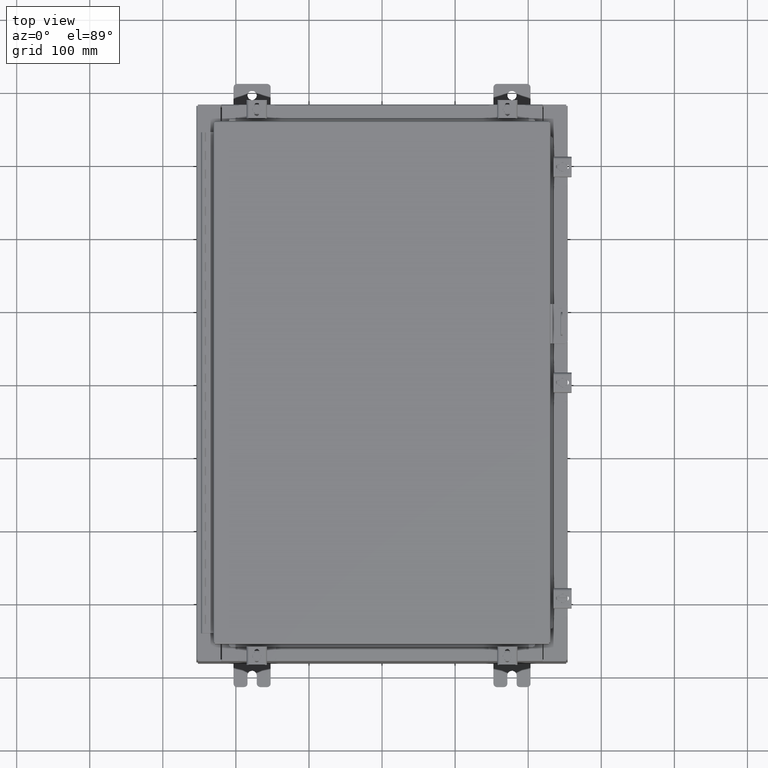
[diagram: clean part render]
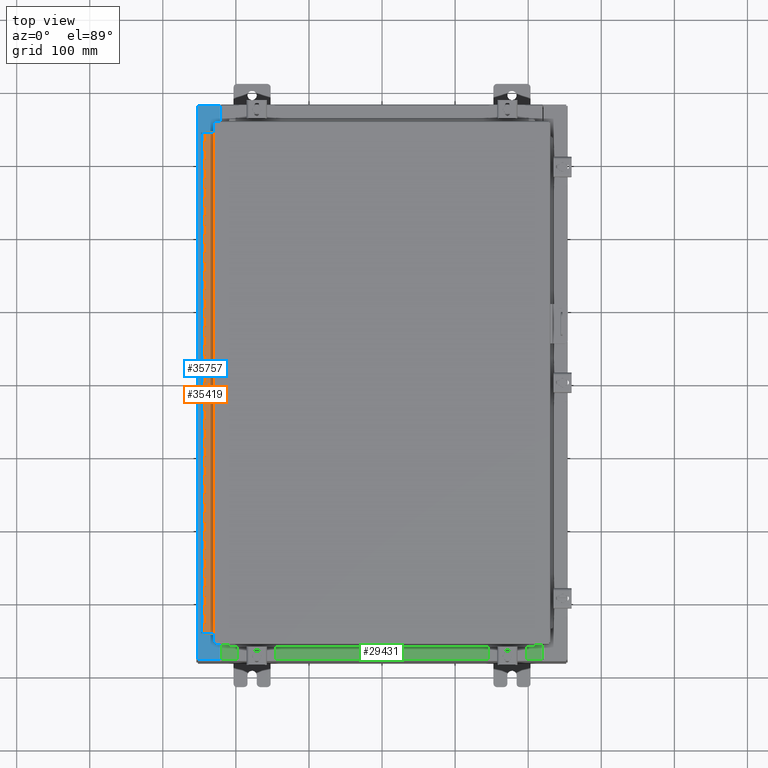
[diagram: same view with three faces highlighted in distinct colors, each labeled with its STEP entity id]
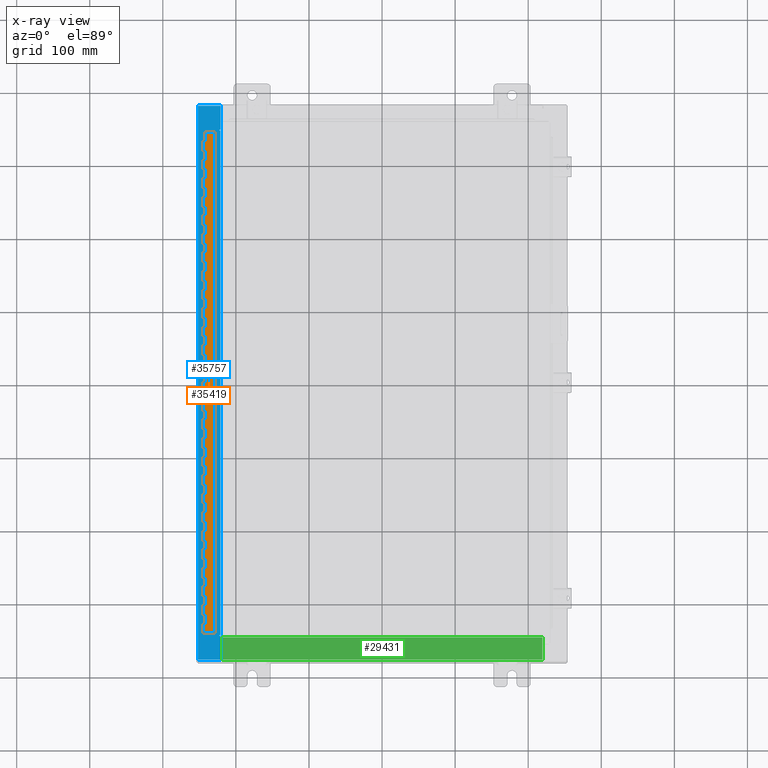
[diagram: x-ray of the same camera — body ghosted, the three highlighted faces saturated]
A machine part, top view with three faces highlighted in distinct colors.
The next image is the same camera in x-ray (body ghosted, the three faces saturated) — at least one of them is partly hidden behind the body in this view.
Their STEP definitions:

[orange] entity #35419 — the highlighted planar face has unit normal (-0, -0, 1).
#123 = CARTESIAN_POINT ( 'NONE',  ( -0.6869999999999982800, 0.5504999999999997700, -20.50000000000000400 ) ) ;
#139 = VERTEX_POINT ( 'NONE', #10615 ) ;
#141 = EDGE_CURVE ( 'NONE', #4760, #16232, #17951, .T. ) ;
#229 = DIRECTION ( 'NONE',  ( 3.389037039080723100E-015, 1.000000000000000000, -0.0000000000000000000 ) ) ;
#335 = CARTESIAN_POINT ( 'NONE',  ( -0.6869999999999978300, 0.6754999999999996600, -27.00000000000000000 ) ) ;
#375 = ORIENTED_EDGE ( 'NONE', *, *, #10365, .T. ) ;
#400 = LINE ( 'NONE', #33529, #29245 ) ;
#404 = CARTESIAN_POINT ( 'NONE',  ( -0.6869999999999978300, 0.6754999999999996600, -1.499999999999999800 ) ) ;
#467 = CARTESIAN_POINT ( 'NONE',  ( -0.6869999999999982800, 0.5504999999999997700, -7.499999999999999100 ) ) ;
#549 = VECTOR ( 'NONE', #6022, 39.37007874015748100 ) ;
#584 = LINE ( 'NONE', #16402, #7295 ) ;
#605 = DIRECTION ( 'NONE',  ( 3.369016658928398200E-015, 1.000000000000000000, 0.0000000000000000000 ) ) ;
#620 = LINE ( 'NONE', #30995, #4631 ) ;
#654 = CARTESIAN_POINT ( 'NONE',  ( -0.6869999999999982800, 0.5504999999999997700, -17.99999999999999600 ) ) ;
#659 = VECTOR ( 'NONE', #27937, 39.37007874015748100 ) ;
#742 = EDGE_CURVE ( 'NONE', #31905, #16573, #5350, .T. ) ;
#762 = DIRECTION ( 'NONE',  ( 0.0000000000000000000, -0.0000000000000000000, -1.000000000000000000 ) ) ;
#772 = VERTEX_POINT ( 'NONE', #6466 ) ;
#785 = LINE ( 'NONE', #21584, #30568 ) ;
#805 = CARTESIAN_POINT ( 'NONE',  ( -0.6869999999999982800, 0.5504999999999997700, -6.499999999999999100 ) ) ;
#830 = DIRECTION ( 'NONE',  ( 0.0000000000000000000, 0.0000000000000000000, 1.000000000000000000 ) ) ;
#833 = CARTESIAN_POINT ( 'NONE',  ( -0.6869999999999998300, 0.07549999999999991400, -27.00000000000000000 ) ) ;
#877 = VECTOR ( 'NONE', #10876, 39.37007874015748100 ) ;
#965 = CARTESIAN_POINT ( 'NONE',  ( -0.6869999999999982800, 0.5504999999999997700, -5.500000000000000000 ) ) ;
#968 = DIRECTION ( 'NONE',  ( -3.389037039080723100E-015, -1.000000000000000000, 0.0000000000000000000 ) ) ;
#984 = EDGE_CURVE ( 'NONE', #20022, #6747, #9354, .T. ) ;
#1015 = CARTESIAN_POINT ( 'NONE',  ( -0.6869999999999978300, 0.6754999999999996600, -11.50000000000000000 ) ) ;
#1043 = VERTEX_POINT ( 'NONE', #23476 ) ;
#1098 = CARTESIAN_POINT ( 'NONE',  ( -0.6869999999999973900, 0.8004999999999995500, -14.49999999999999800 ) ) ;
#1156 = LINE ( 'NONE', #23955, #30935 ) ;
#1173 = CARTESIAN_POINT ( 'NONE',  ( -0.6869999999999978300, 0.6754999999999996600, -14.99999999999999800 ) ) ;
#1221 = CARTESIAN_POINT ( 'NONE',  ( -0.6869999999999982800, 0.5504999999999997700, -22.00000000000000000 ) ) ;
#1314 = VERTEX_POINT ( 'NONE', #23846 ) ;
#1356 = LINE ( 'NONE', #23913, #31166 ) ;
#1451 = VECTOR ( 'NONE', #16637, 39.37007874015748100 ) ;
#1512 = DIRECTION ( 'NONE',  ( 3.389037039080723100E-015, 1.000000000000000000, -0.0000000000000000000 ) ) ;
#1513 = VERTEX_POINT ( 'NONE', #36275 ) ;
#1514 = EDGE_CURVE ( 'NONE', #27953, #30370, #400, .T. ) ;
#1519 = VECTOR ( 'NONE', #8281, 39.37007874015748100 ) ;
#1612 = EDGE_CURVE ( 'NONE', #19536, #3918, #13783, .T. ) ;
#1853 = CARTESIAN_POINT ( 'NONE',  ( -0.6869999999999978300, 0.6754999999999996600, -10.00000000000000000 ) ) ;
#1883 = VECTOR ( 'NONE', #23365, 39.37007874015748100 ) ;
#1934 = LINE ( 'NONE', #8026, #8643 ) ;
#1947 = LINE ( 'NONE', #28435, #8651 ) ;
#2007 = EDGE_CURVE ( 'NONE', #18175, #29382, #21065, .T. ) ;
#2012 = DIRECTION ( 'NONE',  ( -3.389037039080723100E-015, -1.000000000000000000, 0.0000000000000000000 ) ) ;
#2021 = ORIENTED_EDGE ( 'NONE', *, *, #29802, .F. ) ;
#2064 = LINE ( 'NONE', #5418, #16381 ) ;
#2104 = ORIENTED_EDGE ( 'NONE', *, *, #33193, .F. ) ;
#2127 = ORIENTED_EDGE ( 'NONE', *, *, #22834, .F. ) ;
#2133 = ORIENTED_EDGE ( 'NONE', *, *, #1514, .F. ) ;
#2207 = EDGE_CURVE ( 'NONE', #17205, #10355, #23306, .T. ) ;
#2311 = ORIENTED_EDGE ( 'NONE', *, *, #31752, .F. ) ;
#2316 = CARTESIAN_POINT ( 'NONE',  ( -0.6869999999999973900, 0.8004999999999995500, -24.50000000000000000 ) ) ;
#2346 = CARTESIAN_POINT ( 'NONE',  ( -0.6869999999999978300, 0.6754999999999996600, -27.00000000000000000 ) ) ;
#2433 = EDGE_CURVE ( 'NONE', #34462, #7637, #5265, .T. ) ;
#2450 = CARTESIAN_POINT ( 'NONE',  ( -0.6869999999999973900, 0.8004999999999995500, -14.99999999999999800 ) ) ;
#2503 = DIRECTION ( 'NONE',  ( 3.389037039080723100E-015, 1.000000000000000000, -0.0000000000000000000 ) ) ;
#2512 = CARTESIAN_POINT ( 'NONE',  ( -0.6870000000000022800, -0.6245000000000003900, 0.0000000000000000000 ) ) ;
#2548 = DIRECTION ( 'NONE',  ( 0.0000000000000000000, 0.0000000000000000000, 1.000000000000000000 ) ) ;
#2577 = VERTEX_POINT ( 'NONE', #404 ) ;
#2618 = ORIENTED_EDGE ( 'NONE', *, *, #11274, .F. ) ;
#2634 = LINE ( 'NONE', #15080, #33415 ) ;
#2925 = LINE ( 'NONE', #1098, #25031 ) ;
#2941 = CARTESIAN_POINT ( 'NONE',  ( -0.6869999999999973900, 0.8004999999999995500, -22.00000000000000000 ) ) ;
#2989 = DIRECTION ( 'NONE',  ( -3.389037039080723100E-015, -1.000000000000000000, 0.0000000000000000000 ) ) ;
#3045 = CARTESIAN_POINT ( 'NONE',  ( -0.6869999999999982800, 0.5504999999999997700, -5.500000000000000000 ) ) ;
#3046 = LINE ( 'NONE', #37414, #32946 ) ;
#3076 = EDGE_CURVE ( 'NONE', #10890, #13872, #22353, .T. ) ;
#3078 = CARTESIAN_POINT ( 'NONE',  ( -0.6869999999999978300, 0.6754999999999996600, -4.500000000000000000 ) ) ;
#3139 = VECTOR ( 'NONE', #14418, 39.37007874015748100 ) ;
#3182 = EDGE_CURVE ( 'NONE', #20112, #36018, #25538, .T. ) ;
#3209 = VERTEX_POINT ( 'NONE', #22574 ) ;
#3271 = CARTESIAN_POINT ( 'NONE',  ( -0.6869999999999973900, 0.8004999999999995500, -6.499999999999999100 ) ) ;
#3276 = CARTESIAN_POINT ( 'NONE',  ( -0.6869999999999982800, 0.5504999999999997700, -4.500000000000000000 ) ) ;
#3299 = CARTESIAN_POINT ( 'NONE',  ( -0.6869999999999982800, 0.5504999999999997700, -8.000000000000000000 ) ) ;
#3380 = ORIENTED_EDGE ( 'NONE', *, *, #23615, .F. ) ;
#3404 = CARTESIAN_POINT ( 'NONE',  ( -0.6869999999999978300, 0.6754999999999996600, -21.50000000000000400 ) ) ;
#3483 = ORIENTED_EDGE ( 'NONE', *, *, #35827, .F. ) ;
#3782 = VERTEX_POINT ( 'NONE', #8530 ) ;
#3863 = DIRECTION ( 'NONE',  ( 0.0000000000000000000, -0.0000000000000000000, -1.000000000000000000 ) ) ;
#3876 = VECTOR ( 'NONE', #31870, 39.37007874015748100 ) ;
#3918 = VERTEX_POINT ( 'NONE', #5282 ) ;
#3985 = DIRECTION ( 'NONE',  ( 3.369016658928398200E-015, 1.000000000000000000, 0.0000000000000000000 ) ) ;
#4005 = ORIENTED_EDGE ( 'NONE', *, *, #742, .F. ) ;
#4009 = LINE ( 'NONE', #8388, #18419 ) ;
#4167 = VECTOR ( 'NONE', #33396, 39.37007874015748100 ) ;
#4200 = CARTESIAN_POINT ( 'NONE',  ( -0.6869999999999978300, 0.6754999999999996600, -11.00000000000000000 ) ) ;
#4201 = VERTEX_POINT ( 'NONE', #17629 ) ;
#4250 = CARTESIAN_POINT ( 'NONE',  ( -0.6869999999999978300, 0.6754999999999996600, -24.50000000000000000 ) ) ;
#4265 = DIRECTION ( 'NONE',  ( -3.389037039080723100E-015, -1.000000000000000000, 0.0000000000000000000 ) ) ;
#4273 = CARTESIAN_POINT ( 'NONE',  ( -0.6869999999999982800, 0.5504999999999997700, -10.50000000000000000 ) ) ;
#4308 = VERTEX_POINT ( 'NONE', #35428 ) ;
#4319 = CARTESIAN_POINT ( 'NONE',  ( -0.6869999999999973900, 0.8004999999999995500, -22.50000000000000000 ) ) ;
#4321 = ORIENTED_EDGE ( 'NONE', *, *, #24053, .F. ) ;
#4357 = VERTEX_POINT ( 'NONE', #31781 ) ;
#4368 = VECTOR ( 'NONE', #10878, 39.37007874015748100 ) ;
#4506 = VECTOR ( 'NONE', #26722, 39.37007874015748100 ) ;
#4532 = VECTOR ( 'NONE', #25609, 39.37007874015748100 ) ;
#4570 = DIRECTION ( 'NONE',  ( 0.0000000000000000000, 0.0000000000000000000, 1.000000000000000000 ) ) ;
#4576 = EDGE_CURVE ( 'NONE', #10507, #13796, #36880, .T. ) ;
#4579 = DIRECTION ( 'NONE',  ( -3.389037039080723100E-015, -1.000000000000000000, 0.0000000000000000000 ) ) ;
#4609 = VERTEX_POINT ( 'NONE', #12056 ) ;
#4631 = VECTOR ( 'NONE', #31266, 39.37007874015748100 ) ;
#4647 = ORIENTED_EDGE ( 'NONE', *, *, #5997, .F. ) ;
#4703 = CARTESIAN_POINT ( 'NONE',  ( -0.6869999999999982800, 0.5504999999999997700, -2.999999999999999600 ) ) ;
#4755 = CARTESIAN_POINT ( 'NONE',  ( -0.6869999999999973900, 0.8004999999999995500, -17.50000000000000000 ) ) ;
#4760 = VERTEX_POINT ( 'NONE', #1221 ) ;
#4831 = VECTOR ( 'NONE', #22152, 39.37007874015748100 ) ;
#4865 = DIRECTION ( 'NONE',  ( 3.389037039080723100E-015, 1.000000000000000000, -0.0000000000000000000 ) ) ;
#4892 = CARTESIAN_POINT ( 'NONE',  ( -0.6869999999999973900, 0.8004999999999995500, -26.50000000000000400 ) ) ;
#4902 = CARTESIAN_POINT ( 'NONE',  ( -0.6869999999999978300, 0.6754999999999996600, -27.00000000000000000 ) ) ;
#5027 = CARTESIAN_POINT ( 'NONE',  ( -0.6869999999999973900, 0.8004999999999995500, -2.999999999999999600 ) ) ;
#5037 = VERTEX_POINT ( 'NONE', #3299 ) ;
#5073 = LINE ( 'NONE', #467, #4167 ) ;
#5083 = VECTOR ( 'NONE', #22303, 39.37007874015748100 ) ;
#5095 = DIRECTION ( 'NONE',  ( 3.389037039080723100E-015, 1.000000000000000000, -0.0000000000000000000 ) ) ;
#5135 = ORIENTED_EDGE ( 'NONE', *, *, #31866, .F. ) ;
#5149 = DIRECTION ( 'NONE',  ( 0.0000000000000000000, 0.0000000000000000000, 1.000000000000000000 ) ) ;
#5168 = EDGE_CURVE ( 'NONE', #34313, #19124, #9102, .T. ) ;
#5185 = ORIENTED_EDGE ( 'NONE', *, *, #11984, .F. ) ;
#5236 = CARTESIAN_POINT ( 'NONE',  ( -0.6869999999999978300, 0.6754999999999996600, -27.00000000000000000 ) ) ;
#5256 = ORIENTED_EDGE ( 'NONE', *, *, #16142, .F. ) ;
#5264 = VERTEX_POINT ( 'NONE', #34023 ) ;
#5265 = LINE ( 'NONE', #4755, #4368 ) ;
#5273 = VERTEX_POINT ( 'NONE', #32944 ) ;
#5282 = CARTESIAN_POINT ( 'NONE',  ( -0.6869999999999978300, 0.6754999999999996600, -20.00000000000000000 ) ) ;
#5290 = EDGE_CURVE ( 'NONE', #25819, #21968, #620, .T. ) ;
#5336 = EDGE_CURVE ( 'NONE', #13500, #17089, #19022, .T. ) ;
#5340 = DIRECTION ( 'NONE',  ( 0.0000000000000000000, 0.0000000000000000000, 1.000000000000000000 ) ) ;
#5350 = LINE ( 'NONE', #10214, #19725 ) ;
#5403 = EDGE_CURVE ( 'NONE', #33496, #5540, #1947, .T. ) ;
#5405 = LINE ( 'NONE', #30029, #12983 ) ;
#5408 = LINE ( 'NONE', #2512, #12984 ) ;
#5414 = EDGE_CURVE ( 'NONE', #23117, #139, #16261, .T. ) ;
#5418 = CARTESIAN_POINT ( 'NONE',  ( -0.6869999999999978300, 0.6754999999999996600, -27.00000000000000000 ) ) ;
#5514 = ORIENTED_EDGE ( 'NONE', *, *, #29567, .F. ) ;
#5540 = VERTEX_POINT ( 'NONE', #24886 ) ;
#5563 = CARTESIAN_POINT ( 'NONE',  ( -0.6869999999999982800, 0.5504999999999997700, -8.500000000000000000 ) ) ;
#5639 = VERTEX_POINT ( 'NONE', #18552 ) ;
#5718 = ORIENTED_EDGE ( 'NONE', *, *, #7424, .T. ) ;
#5727 = EDGE_CURVE ( 'NONE', #15549, #34586, #36848, .T. ) ;
#5762 = CARTESIAN_POINT ( 'NONE',  ( -0.6869999999999978300, 0.6754999999999996600, -10.50000000000000000 ) ) ;
#5822 = ORIENTED_EDGE ( 'NONE', *, *, #17973, .F. ) ;
#5832 = CARTESIAN_POINT ( 'NONE',  ( -0.6869999999999982800, 0.5504999999999997700, -20.50000000000000400 ) ) ;
#5842 = ORIENTED_EDGE ( 'NONE', *, *, #12937, .F. ) ;
#5859 = VERTEX_POINT ( 'NONE', #10679 ) ;
#5884 = VERTEX_POINT ( 'NONE', #10203 ) ;
#5886 = ORIENTED_EDGE ( 'NONE', *, *, #8895, .F. ) ;
#5997 = EDGE_CURVE ( 'NONE', #30102, #772, #21757, .T. ) ;
#6022 = DIRECTION ( 'NONE',  ( 3.389037039080723100E-015, 1.000000000000000000, -0.0000000000000000000 ) ) ;
#6111 = CARTESIAN_POINT ( 'NONE',  ( -0.6869999999999982800, 0.5504999999999997700, -9.500000000000000000 ) ) ;
#6236 = VERTEX_POINT ( 'NONE', #27376 ) ;
#6251 = VERTEX_POINT ( 'NONE', #26893 ) ;
#6270 = EDGE_CURVE ( 'NONE', #36944, #25449, #13551, .T. ) ;
#6287 = CARTESIAN_POINT ( 'NONE',  ( -0.6869999999999982800, 0.5504999999999997700, -19.00000000000000000 ) ) ;
#6291 = ORIENTED_EDGE ( 'NONE', *, *, #6711, .F. ) ;
#6371 = DIRECTION ( 'NONE',  ( 0.0000000000000000000, -0.0000000000000000000, -1.000000000000000000 ) ) ;
#6374 = ORIENTED_EDGE ( 'NONE', *, *, #20440, .T. ) ;
#6419 = CARTESIAN_POINT ( 'NONE',  ( -0.6869999999999978300, 0.6754999999999996600, -23.50000000000000000 ) ) ;
#6464 = CARTESIAN_POINT ( 'NONE',  ( -0.6869999999999978300, 0.6754999999999996600, -26.50000000000000400 ) ) ;
#6466 = CARTESIAN_POINT ( 'NONE',  ( -0.6869999999999982800, 0.5504999999999997700, -14.00000000000000000 ) ) ;
#6527 = ORIENTED_EDGE ( 'NONE', *, *, #14314, .F. ) ;
#6549 = ORIENTED_EDGE ( 'NONE', *, *, #25721, .F. ) ;
#6605 = CARTESIAN_POINT ( 'NONE',  ( -0.6869999999999973900, 0.8004999999999995500, -3.500000000000000000 ) ) ;
#6711 = EDGE_CURVE ( 'NONE', #21968, #22900, #27174, .T. ) ;
#6739 = ORIENTED_EDGE ( 'NONE', *, *, #36287, .T. ) ;
#6747 = VERTEX_POINT ( 'NONE', #8718 ) ;
#6815 = EDGE_CURVE ( 'NONE', #1314, #12651, #8160, .T. ) ;
#6839 = CARTESIAN_POINT ( 'NONE',  ( -0.6869999999999978300, 0.6754999999999996600, -17.99999999999999600 ) ) ;
#6865 = DIRECTION ( 'NONE',  ( 0.0000000000000000000, -0.0000000000000000000, -1.000000000000000000 ) ) ;
#6889 = EDGE_CURVE ( 'NONE', #24624, #6747, #13050, .T. ) ;
#6898 = LINE ( 'NONE', #15347, #5083 ) ;
#6935 = CARTESIAN_POINT ( 'NONE',  ( -0.6869999999999973900, 0.8004999999999995500, -24.99999999999999600 ) ) ;
#6942 = EDGE_CURVE ( 'NONE', #24741, #29701, #34474, .T. ) ;
#6943 = ORIENTED_EDGE ( 'NONE', *, *, #32494, .F. ) ;
#6946 = DIRECTION ( 'NONE',  ( 3.369016658928398200E-015, 1.000000000000000000, 0.0000000000000000000 ) ) ;
#6954 = VERTEX_POINT ( 'NONE', #35166 ) ;
#7059 = DIRECTION ( 'NONE',  ( 3.389037039080723100E-015, 1.000000000000000000, -0.0000000000000000000 ) ) ;
#7060 = CARTESIAN_POINT ( 'NONE',  ( -0.6869999999999978300, 0.6754999999999996600, -22.00000000000000000 ) ) ;
#7062 = DIRECTION ( 'NONE',  ( 0.0000000000000000000, -0.0000000000000000000, -1.000000000000000000 ) ) ;
#7212 = EDGE_CURVE ( 'NONE', #10890, #23117, #11671, .T. ) ;
#7256 = ORIENTED_EDGE ( 'NONE', *, *, #2207, .F. ) ;
#7295 = VECTOR ( 'NONE', #16436, 39.37007874015748100 ) ;
#7379 = LINE ( 'NONE', #37158, #21419 ) ;
#7400 = VECTOR ( 'NONE', #33333, 39.37007874015748100 ) ;
#7424 = EDGE_CURVE ( 'NONE', #34462, #7838, #19826, .T. ) ;
#7450 = CARTESIAN_POINT ( 'NONE',  ( -0.6869999999999978300, 0.6754999999999996600, -7.499999999999999100 ) ) ;
#7502 = DIRECTION ( 'NONE',  ( 0.0000000000000000000, 0.0000000000000000000, 1.000000000000000000 ) ) ;
#7551 = EDGE_CURVE ( 'NONE', #16753, #36463, #28904, .T. ) ;
#7606 = CARTESIAN_POINT ( 'NONE',  ( -0.6869999999999982800, 0.5504999999999997700, -19.50000000000000000 ) ) ;
#7637 = VERTEX_POINT ( 'NONE', #21293 ) ;
#7676 = CARTESIAN_POINT ( 'NONE',  ( -0.6869999999999982800, 0.5504999999999997700, -13.50000000000000000 ) ) ;
#7707 = EDGE_CURVE ( 'NONE', #36944, #3782, #8974, .T. ) ;
#7715 = VERTEX_POINT ( 'NONE', #19517 ) ;
#7729 = ORIENTED_EDGE ( 'NONE', *, *, #34685, .F. ) ;
#7802 = ORIENTED_EDGE ( 'NONE', *, *, #5403, .F. ) ;
#7819 = EDGE_CURVE ( 'NONE', #9911, #15564, #34393, .T. ) ;
#7826 = CARTESIAN_POINT ( 'NONE',  ( -0.6869999999999978300, 0.6754999999999996600, -27.00000000000000000 ) ) ;
#7838 = VERTEX_POINT ( 'NONE', #17752 ) ;
#7936 = DIRECTION ( 'NONE',  ( 3.389037039080723100E-015, 1.000000000000000000, -0.0000000000000000000 ) ) ;
#8000 = VECTOR ( 'NONE', #35812, 39.37007874015748100 ) ;
#8026 = CARTESIAN_POINT ( 'NONE',  ( -0.6869999999999982800, 0.5504999999999997700, -18.50000000000000000 ) ) ;
#8032 = CARTESIAN_POINT ( 'NONE',  ( -0.6869999999999973900, 0.8004999999999995500, -16.00000000000000000 ) ) ;
#8103 = CARTESIAN_POINT ( 'NONE',  ( -0.6869999999999978300, 0.6754999999999996600, -27.00000000000000000 ) ) ;
#8141 = EDGE_CURVE ( 'NONE', #32192, #4201, #11598, .T. ) ;
#8148 = ORIENTED_EDGE ( 'NONE', *, *, #13152, .T. ) ;
#8160 = LINE ( 'NONE', #20472, #549 ) ;
#8227 = VECTOR ( 'NONE', #36520, 39.37007874015748100 ) ;
#8281 = DIRECTION ( 'NONE',  ( 0.0000000000000000000, 0.0000000000000000000, 1.000000000000000000 ) ) ;
#8285 = DIRECTION ( 'NONE',  ( 0.0000000000000000000, -0.0000000000000000000, -1.000000000000000000 ) ) ;
#8298 = LINE ( 'NONE', #13096, #7400 ) ;
#8386 = CARTESIAN_POINT ( 'NONE',  ( -0.6869999999999998300, 0.07549999999999991400, 0.0000000000000000000 ) ) ;
#8388 = CARTESIAN_POINT ( 'NONE',  ( -0.6869999999999978300, 0.6754999999999996600, -27.00000000000000000 ) ) ;
#8495 = CARTESIAN_POINT ( 'NONE',  ( -0.6869999999999982800, 0.5504999999999997700, -12.49999999999999800 ) ) ;
#8500 = DIRECTION ( 'NONE',  ( 0.0000000000000000000, -0.0000000000000000000, -1.000000000000000000 ) ) ;
#8504 = LINE ( 'NONE', #26673, #30687 ) ;
#8530 = CARTESIAN_POINT ( 'NONE',  ( -0.6869999999999982800, 0.5504999999999997700, -16.50000000000000000 ) ) ;
#8632 = EDGE_CURVE ( 'NONE', #26638, #4201, #32034, .T. ) ;
#8643 = VECTOR ( 'NONE', #8285, 39.37007874015748100 ) ;
#8651 = VECTOR ( 'NONE', #28111, 39.37007874015748100 ) ;
#8718 = CARTESIAN_POINT ( 'NONE',  ( -0.6869999999999978300, 0.6754999999999996600, -21.00000000000000000 ) ) ;
#8833 = LINE ( 'NONE', #34496, #15560 ) ;
#8895 = EDGE_CURVE ( 'NONE', #10403, #11725, #16952, .T. ) ;
#8907 = ORIENTED_EDGE ( 'NONE', *, *, #36232, .T. ) ;
#8948 = VERTEX_POINT ( 'NONE', #21567 ) ;
#8974 = LINE ( 'NONE', #19853, #15710 ) ;
#9060 = EDGE_CURVE ( 'NONE', #17126, #28876, #33848, .T. ) ;
#9076 = ORIENTED_EDGE ( 'NONE', *, *, #32056, .F. ) ;
#9098 = LINE ( 'NONE', #8103, #1519 ) ;
#9102 = LINE ( 'NONE', #36444, #8227 ) ;
#9164 = ORIENTED_EDGE ( 'NONE', *, *, #26518, .F. ) ;
#9294 = CARTESIAN_POINT ( 'NONE',  ( -0.6869999999999978300, 0.6754999999999996600, -17.50000000000000000 ) ) ;
#9354 = LINE ( 'NONE', #16434, #23807 ) ;
#9367 = CARTESIAN_POINT ( 'NONE',  ( -0.6869999999999978300, 0.6754999999999996600, -7.000000000000000000 ) ) ;
#9404 = LINE ( 'NONE', #36577, #24804 ) ;
#9420 = ORIENTED_EDGE ( 'NONE', *, *, #9986, .F. ) ;
#9438 = EDGE_CURVE ( 'NONE', #16753, #25317, #16023, .T. ) ;
#9452 = ORIENTED_EDGE ( 'NONE', *, *, #5414, .F. ) ;
#9490 = LINE ( 'NONE', #805, #18065 ) ;
#9668 = VECTOR ( 'NONE', #29945, 39.37007874015748100 ) ;
#9769 = CARTESIAN_POINT ( 'NONE',  ( -0.6869999999999978300, 0.6754999999999996600, -15.50000000000000000 ) ) ;
#9885 = ORIENTED_EDGE ( 'NONE', *, *, #984, .F. ) ;
#9898 = CARTESIAN_POINT ( 'NONE',  ( -0.6869999999999982800, 0.5504999999999997700, -23.50000000000000000 ) ) ;
#9911 = VERTEX_POINT ( 'NONE', #28525 ) ;
#9986 = EDGE_CURVE ( 'NONE', #32358, #5859, #35543, .T. ) ;
#10141 = VECTOR ( 'NONE', #22964, 39.37007874015748100 ) ;
#10203 = CARTESIAN_POINT ( 'NONE',  ( -0.6869999999999978300, 0.6754999999999996600, -26.00000000000000000 ) ) ;
#10206 = EDGE_CURVE ( 'NONE', #3209, #7715, #26322, .T. ) ;
#10214 = CARTESIAN_POINT ( 'NONE',  ( -0.6869999999999973900, 0.8004999999999995500, -20.50000000000000400 ) ) ;
#10331 = ORIENTED_EDGE ( 'NONE', *, *, #21283, .F. ) ;
#10339 = VECTOR ( 'NONE', #12735, 39.37007874015748100 ) ;
#10355 = VERTEX_POINT ( 'NONE', #19933 ) ;
#10365 = EDGE_CURVE ( 'NONE', #21199, #15109, #37300, .T. ) ;
#10403 = VERTEX_POINT ( 'NONE', #19019 ) ;
#10409 = CARTESIAN_POINT ( 'NONE',  ( -0.6869999999999982800, 0.5504999999999997700, -7.000000000000000000 ) ) ;
#10507 = VERTEX_POINT ( 'NONE', #16942 ) ;
#10590 = CARTESIAN_POINT ( 'NONE',  ( -0.6869999999999973900, 0.8004999999999995500, -5.000000000000000000 ) ) ;
#10615 = CARTESIAN_POINT ( 'NONE',  ( -0.6869999999999982800, 0.5504999999999997700, -16.00000000000000000 ) ) ;
#10618 = LINE ( 'NONE', #7826, #24226 ) ;
#10668 = DIRECTION ( 'NONE',  ( 0.0000000000000000000, -0.0000000000000000000, -1.000000000000000000 ) ) ;
#10679 = CARTESIAN_POINT ( 'NONE',  ( -0.6869999999999982800, 0.5504999999999997700, -11.00000000000000000 ) ) ;
#10717 = ORIENTED_EDGE ( 'NONE', *, *, #11002, .F. ) ;
#10737 = CARTESIAN_POINT ( 'NONE',  ( -0.6869999999999978300, 0.6754999999999996600, -16.50000000000000000 ) ) ;
#10819 = VERTEX_POINT ( 'NONE', #10946 ) ;
#10847 = LINE ( 'NONE', #8495, #25365 ) ;
#10876 = DIRECTION ( 'NONE',  ( 0.0000000000000000000, -0.0000000000000000000, -1.000000000000000000 ) ) ;
#10878 = DIRECTION ( 'NONE',  ( -3.389037039080723100E-015, -1.000000000000000000, 0.0000000000000000000 ) ) ;
#10890 = VERTEX_POINT ( 'NONE', #9769 ) ;
#10921 = LINE ( 'NONE', #23461, #17703 ) ;
#10937 = CARTESIAN_POINT ( 'NONE',  ( -0.6869999999999978300, 0.6754999999999996600, -27.00000000000000000 ) ) ;
#10946 = CARTESIAN_POINT ( 'NONE',  ( -0.6869999999999982800, 0.5504999999999997700, -26.00000000000000000 ) ) ;
#11002 = EDGE_CURVE ( 'NONE', #29382, #17205, #1934, .T. ) ;
#11107 = CARTESIAN_POINT ( 'NONE',  ( -0.6869999999999973900, 0.8004999999999995500, -21.50000000000000400 ) ) ;
#11223 = CARTESIAN_POINT ( 'NONE',  ( -0.6869999999999978300, 0.6754999999999996600, -23.00000000000000000 ) ) ;
#11235 = VECTOR ( 'NONE', #34844, 39.37007874015748100 ) ;
#11265 = ORIENTED_EDGE ( 'NONE', *, *, #35153, .F. ) ;
#11274 = EDGE_CURVE ( 'NONE', #27575, #6251, #29427, .T. ) ;
#11326 = CARTESIAN_POINT ( 'NONE',  ( -0.6869999999999982800, 0.5504999999999997700, -2.500000000000000000 ) ) ;
#11389 = EDGE_CURVE ( 'NONE', #13796, #3209, #18975, .T. ) ;
#11395 = VECTOR ( 'NONE', #5340, 39.37007874015748100 ) ;
#11400 = ORIENTED_EDGE ( 'NONE', *, *, #23997, .T. ) ;
#11420 = VECTOR ( 'NONE', #7059, 39.37007874015748100 ) ;
#11441 = EDGE_CURVE ( 'NONE', #36348, #17126, #9490, .T. ) ;
#11563 = LINE ( 'NONE', #23569, #19278 ) ;
#11598 = LINE ( 'NONE', #11882, #32072 ) ;
#11617 = VERTEX_POINT ( 'NONE', #27175 ) ;
#11671 = LINE ( 'NONE', #29237, #18490 ) ;
#11725 = VERTEX_POINT ( 'NONE', #20718 ) ;
#11762 = DIRECTION ( 'NONE',  ( 3.389037039080723100E-015, 1.000000000000000000, -0.0000000000000000000 ) ) ;
#11867 = EDGE_CURVE ( 'NONE', #2577, #22957, #33532, .T. ) ;
#11882 = CARTESIAN_POINT ( 'NONE',  ( -0.6869999999999973900, 0.8004999999999995500, -2.000000000000000000 ) ) ;
#11883 = LINE ( 'NONE', #17420, #18717 ) ;
#11971 = EDGE_CURVE ( 'NONE', #30370, #19536, #14362, .T. ) ;
#11984 = EDGE_CURVE ( 'NONE', #16573, #20022, #35832, .T. ) ;
#12056 = CARTESIAN_POINT ( 'NONE',  ( -0.6869999999999982800, 0.5504999999999997700, -14.99999999999999800 ) ) ;
#12126 = ORIENTED_EDGE ( 'NONE', *, *, #27079, .T. ) ;
#12156 = EDGE_CURVE ( 'NONE', #34313, #33496, #21634, .T. ) ;
#12181 = CARTESIAN_POINT ( 'NONE',  ( -0.6869999999999973900, 0.8004999999999995500, -13.50000000000000000 ) ) ;
#12226 = LINE ( 'NONE', #5027, #19040 ) ;
#12235 = VECTOR ( 'NONE', #19626, 39.37007874015748100 ) ;
#12397 = VECTOR ( 'NONE', #31941, 39.37007874015748100 ) ;
#12524 = LINE ( 'NONE', #25678, #20227 ) ;
#12562 = LINE ( 'NONE', #12181, #3139 ) ;
#12617 = ORIENTED_EDGE ( 'NONE', *, *, #37476, .T. ) ;
#12651 = VERTEX_POINT ( 'NONE', #25928 ) ;
#12666 = VECTOR ( 'NONE', #28380, 39.37007874015748100 ) ;
#12724 = CARTESIAN_POINT ( 'NONE',  ( -0.6869999999999982800, 0.5504999999999997700, -19.50000000000000000 ) ) ;
#12735 = DIRECTION ( 'NONE',  ( -3.389037039080723100E-015, -1.000000000000000000, 0.0000000000000000000 ) ) ;
#12822 = VECTOR ( 'NONE', #17901, 39.37007874015748100 ) ;
#12827 = CARTESIAN_POINT ( 'NONE',  ( -0.6869999999999973900, 0.8004999999999995500, -5.500000000000000000 ) ) ;
#12867 = ORIENTED_EDGE ( 'NONE', *, *, #26283, .T. ) ;
#12937 = EDGE_CURVE ( 'NONE', #4308, #37031, #19289, .T. ) ;
#12942 = DIRECTION ( 'NONE',  ( -3.389037039080723100E-015, -1.000000000000000000, 0.0000000000000000000 ) ) ;
#12983 = VECTOR ( 'NONE', #29982, 39.37007874015748100 ) ;
#12984 = VECTOR ( 'NONE', #3985, 39.37007874015748100 ) ;
#13020 = LINE ( 'NONE', #35845, #35368 ) ;
#13050 = LINE ( 'NONE', #36920, #29414 ) ;
#13096 = CARTESIAN_POINT ( 'NONE',  ( -0.6869999999999978300, 0.6754999999999996600, -27.00000000000000000 ) ) ;
#13152 = EDGE_CURVE ( 'NONE', #10507, #11617, #2634, .T. ) ;
#13175 = CARTESIAN_POINT ( 'NONE',  ( -0.6869999999999973900, 0.8004999999999995500, -1.499999999999999800 ) ) ;
#13350 = LINE ( 'NONE', #5236, #28809 ) ;
#13462 = VERTEX_POINT ( 'NONE', #8386 ) ;
#13500 = VERTEX_POINT ( 'NONE', #7450 ) ;
#13550 = VECTOR ( 'NONE', #36000, 39.37007874015748100 ) ;
#13551 = LINE ( 'NONE', #28655, #12666 ) ;
#13628 = VERTEX_POINT ( 'NONE', #5762 ) ;
#13720 = VECTOR ( 'NONE', #25669, 39.37007874015748100 ) ;
#13783 = LINE ( 'NONE', #35821, #22420 ) ;
#13796 = VERTEX_POINT ( 'NONE', #3045 ) ;
#13872 = VERTEX_POINT ( 'NONE', #1173 ) ;
#13960 = VECTOR ( 'NONE', #3863, 39.37007874015748100 ) ;
#13983 = EDGE_CURVE ( 'NONE', #24741, #10403, #18369, .T. ) ;
#14035 = VERTEX_POINT ( 'NONE', #32250 ) ;
#14314 = EDGE_CURVE ( 'NONE', #22900, #6954, #16047, .T. ) ;
#14344 = CARTESIAN_POINT ( 'NONE',  ( -0.6869999999999973900, 0.8004999999999995500, -19.00000000000000000 ) ) ;
#14362 = LINE ( 'NONE', #7606, #36728 ) ;
#14418 = DIRECTION ( 'NONE',  ( -3.389037039080723100E-015, -1.000000000000000000, 0.0000000000000000000 ) ) ;
#14470 = VERTEX_POINT ( 'NONE', #6111 ) ;
#14516 = VECTOR ( 'NONE', #4265, 39.37007874015748100 ) ;
#14700 = ORIENTED_EDGE ( 'NONE', *, *, #34236, .F. ) ;
#14744 = LINE ( 'NONE', #22877, #37100 ) ;
#14764 = DIRECTION ( 'NONE',  ( 3.389037039080723100E-015, 1.000000000000000000, -0.0000000000000000000 ) ) ;
#14808 = VECTOR ( 'NONE', #6946, 39.37007874015748100 ) ;
#14819 = ORIENTED_EDGE ( 'NONE', *, *, #19880, .F. ) ;
#14901 = VERTEX_POINT ( 'NONE', #32163 ) ;
#14946 = CARTESIAN_POINT ( 'NONE',  ( -0.6869999999999973900, 0.8004999999999995500, -8.500000000000000000 ) ) ;
#14974 = EDGE_CURVE ( 'NONE', #10819, #5884, #31936, .T. ) ;
#15063 = DIRECTION ( 'NONE',  ( 3.389037039080723100E-015, 1.000000000000000000, -0.0000000000000000000 ) ) ;
#15080 = CARTESIAN_POINT ( 'NONE',  ( -0.6869999999999978300, 0.6754999999999996600, -27.00000000000000000 ) ) ;
#15109 = VERTEX_POINT ( 'NONE', #27805 ) ;
#15181 = LINE ( 'NONE', #24904, #36631 ) ;
#15213 = CARTESIAN_POINT ( 'NONE',  ( -0.6869999999999982800, 0.5504999999999997700, -4.000000000000000000 ) ) ;
#15260 = LINE ( 'NONE', #4319, #30745 ) ;
#15283 = DIRECTION ( 'NONE',  ( 0.0000000000000000000, 0.0000000000000000000, 1.000000000000000000 ) ) ;
#15347 = CARTESIAN_POINT ( 'NONE',  ( -0.6869999999999978300, 0.6754999999999996600, -27.00000000000000000 ) ) ;
#15504 = ORIENTED_EDGE ( 'NONE', *, *, #5290, .F. ) ;
#15505 = ORIENTED_EDGE ( 'NONE', *, *, #7212, .F. ) ;
#15542 = DIRECTION ( 'NONE',  ( 3.389037039080723100E-015, 1.000000000000000000, -0.0000000000000000000 ) ) ;
#15549 = VERTEX_POINT ( 'NONE', #19248 ) ;
#15560 = VECTOR ( 'NONE', #20144, 39.37007874015748100 ) ;
#15563 = CARTESIAN_POINT ( 'NONE',  ( -0.6869999999999978300, 0.6754999999999996600, -27.00000000000000000 ) ) ;
#15564 = VERTEX_POINT ( 'NONE', #18759 ) ;
#15573 = VECTOR ( 'NONE', #14764, 39.37007874015748100 ) ;
#15710 = VECTOR ( 'NONE', #20024, 39.37007874015748100 ) ;
#15735 = LINE ( 'NONE', #335, #31239 ) ;
#15739 = DIRECTION ( 'NONE',  ( 0.0000000000000000000, 0.0000000000000000000, 1.000000000000000000 ) ) ;
#15892 = ORIENTED_EDGE ( 'NONE', *, *, #4576, .F. ) ;
#15978 = DIRECTION ( 'NONE',  ( 3.389037039080723100E-015, 1.000000000000000000, -0.0000000000000000000 ) ) ;
#16023 = LINE ( 'NONE', #36990, #30604 ) ;
#16047 = LINE ( 'NONE', #17954, #30623 ) ;
#16056 = CARTESIAN_POINT ( 'NONE',  ( -0.6869999999999973900, 0.8004999999999995500, -9.000000000000000000 ) ) ;
#16064 = VECTOR ( 'NONE', #25099, 39.37007874015748100 ) ;
#16142 = EDGE_CURVE ( 'NONE', #36463, #1314, #10847, .T. ) ;
#16232 = VERTEX_POINT ( 'NONE', #7060 ) ;
#16261 = LINE ( 'NONE', #27886, #659 ) ;
#16332 = LINE ( 'NONE', #30877, #30923 ) ;
#16381 = VECTOR ( 'NONE', #5149, 39.37007874015748100 ) ;
#16403 = DIRECTION ( 'NONE',  ( 3.389037039080723100E-015, 1.000000000000000000, -0.0000000000000000000 ) ) ;
#16402 = CARTESIAN_POINT ( 'NONE',  ( -0.6869999999999973900, 0.8004999999999995500, -25.50000000000000400 ) ) ;
#16434 = CARTESIAN_POINT ( 'NONE',  ( -0.6869999999999973900, 0.8004999999999995500, -21.00000000000000000 ) ) ;
#16436 = DIRECTION ( 'NONE',  ( -3.389037039080723100E-015, -1.000000000000000000, 0.0000000000000000000 ) ) ;
#16517 = VECTOR ( 'NONE', #2548, 39.37007874015748100 ) ;
#16573 = VERTEX_POINT ( 'NONE', #123 ) ;
#16583 = CARTESIAN_POINT ( 'NONE',  ( -0.6869999999999978300, 0.6754999999999996600, -13.50000000000000000 ) ) ;
#16637 = DIRECTION ( 'NONE',  ( 0.0000000000000000000, -0.0000000000000000000, -1.000000000000000000 ) ) ;
#16753 = VERTEX_POINT ( 'NONE', #31551 ) ;
#16808 = DIRECTION ( 'NONE',  ( 3.389037039080723100E-015, 1.000000000000000000, -0.0000000000000000000 ) ) ;
#16812 = CARTESIAN_POINT ( 'NONE',  ( -0.6869999999999982800, 0.5504999999999997700, -22.50000000000000000 ) ) ;
#16847 = EDGE_CURVE ( 'NONE', #19375, #4760, #25767, .T. ) ;
#16874 = VERTEX_POINT ( 'NONE', #3078 ) ;
#16877 = CARTESIAN_POINT ( 'NONE',  ( -0.6869999999999982800, 0.5504999999999997700, -14.49999999999999800 ) ) ;
#16895 = CARTESIAN_POINT ( 'NONE',  ( -0.6869999999999973900, 0.8004999999999995500, -7.000000000000000000 ) ) ;
#16921 = LINE ( 'NONE', #10590, #31530 ) ;
#16942 = CARTESIAN_POINT ( 'NONE',  ( -0.6869999999999978300, 0.6754999999999996600, -5.500000000000000000 ) ) ;
#16952 = LINE ( 'NONE', #5563, #16064 ) ;
#16955 = LINE ( 'NONE', #3271, #31568 ) ;
#17034 = CARTESIAN_POINT ( 'NONE',  ( -0.6869999999999982800, 0.5504999999999997700, -2.000000000000000000 ) ) ;
#17047 = ORIENTED_EDGE ( 'NONE', *, *, #11971, .F. ) ;
#17089 = VERTEX_POINT ( 'NONE', #36732 ) ;
#17101 = VECTOR ( 'NONE', #4579, 39.37007874015748100 ) ;
#17126 = VERTEX_POINT ( 'NONE', #10409 ) ;
#17205 = VERTEX_POINT ( 'NONE', #6287 ) ;
#17290 = LINE ( 'NONE', #26652, #9668 ) ;
#17320 = CARTESIAN_POINT ( 'NONE',  ( -0.6869999999999982800, 0.5504999999999997700, -11.50000000000000000 ) ) ;
#17420 = CARTESIAN_POINT ( 'NONE',  ( -0.6869999999999982800, 0.5504999999999997700, -1.499999999999999800 ) ) ;
#17438 = ORIENTED_EDGE ( 'NONE', *, *, #35493, .F. ) ;
#17453 = DIRECTION ( 'NONE',  ( 0.0000000000000000000, -0.0000000000000000000, -1.000000000000000000 ) ) ;
#17470 = DIRECTION ( 'NONE',  ( 0.0000000000000000000, 0.0000000000000000000, 1.000000000000000000 ) ) ;
#17480 = CARTESIAN_POINT ( 'NONE',  ( -0.6869999999999982800, 0.5504999999999997700, -24.50000000000000000 ) ) ;
#17545 = CARTESIAN_POINT ( 'NONE',  ( -0.6869999999999982800, 0.5504999999999997700, -23.50000000000000000 ) ) ;
#17546 = DIRECTION ( 'NONE',  ( 0.0000000000000000000, -0.0000000000000000000, -1.000000000000000000 ) ) ;
#17624 = VERTEX_POINT ( 'NONE', #32386 ) ;
#17629 = CARTESIAN_POINT ( 'NONE',  ( -0.6869999999999978300, 0.6754999999999996600, -2.000000000000000000 ) ) ;
#17681 = DIRECTION ( 'NONE',  ( 3.389037039080723100E-015, 1.000000000000000000, -0.0000000000000000000 ) ) ;
#17688 = CARTESIAN_POINT ( 'NONE',  ( -0.6869999999999973900, 0.8004999999999995500, -11.00000000000000000 ) ) ;
#17703 = VECTOR ( 'NONE', #24135, 39.37007874015748100 ) ;
#17752 = CARTESIAN_POINT ( 'NONE',  ( -0.6869999999999978300, 0.6754999999999996600, -17.00000000000000000 ) ) ;
#17755 = EDGE_CURVE ( 'NONE', #30038, #36406, #5405, .T. ) ;
#17772 = DIRECTION ( 'NONE',  ( 1.000000000000000000, -3.369016658928398200E-015, 0.0000000000000000000 ) ) ;
#17901 = DIRECTION ( 'NONE',  ( -3.389037039080723100E-015, -1.000000000000000000, 0.0000000000000000000 ) ) ;
#17951 = LINE ( 'NONE', #2941, #23844 ) ;
#17954 = CARTESIAN_POINT ( 'NONE',  ( -0.6869999999999973900, 0.8004999999999995500, -23.99999999999999600 ) ) ;
#17973 = EDGE_CURVE ( 'NONE', #26638, #8948, #12524, .T. ) ;
#17995 = ORIENTED_EDGE ( 'NONE', *, *, #7707, .F. ) ;
#18059 = EDGE_CURVE ( 'NONE', #25061, #10819, #1356, .T. ) ;
#18065 = VECTOR ( 'NONE', #37354, 39.37007874015748100 ) ;
#18081 = CARTESIAN_POINT ( 'NONE',  ( -0.6869999999999982800, 0.5504999999999997700, -20.00000000000000000 ) ) ;
#18120 = EDGE_CURVE ( 'NONE', #33161, #4357, #14744, .T. ) ;
#18175 = VERTEX_POINT ( 'NONE', #21672 ) ;
#18183 = EDGE_CURVE ( 'NONE', #31777, #13462, #28398, .T. ) ;
#18200 = LINE ( 'NONE', #26647, #25006 ) ;
#18254 = CARTESIAN_POINT ( 'NONE',  ( -0.6869999999999982800, 0.5504999999999997700, -10.00000000000000000 ) ) ;
#18369 = LINE ( 'NONE', #14946, #32956 ) ;
#18399 = CARTESIAN_POINT ( 'NONE',  ( -0.6869999999999978300, 0.6754999999999996600, -27.00000000000000000 ) ) ;
#18403 = VECTOR ( 'NONE', #19782, 39.37007874015748100 ) ;
#18419 = VECTOR ( 'NONE', #19970, 39.37007874015748100 ) ;
#18467 = ORIENTED_EDGE ( 'NONE', *, *, #26691, .F. ) ;
#18490 = VECTOR ( 'NONE', #29443, 39.37007874015748100 ) ;
#18552 = CARTESIAN_POINT ( 'NONE',  ( -0.6869999999999978300, 0.6754999999999996600, -0.5000000000000000000 ) ) ;
#18626 = VECTOR ( 'NONE', #22373, 39.37007874015748100 ) ;
#18701 = LINE ( 'NONE', #8032, #19590 ) ;
#18717 = VECTOR ( 'NONE', #17546, 39.37007874015748100 ) ;
#18724 = ORIENTED_EDGE ( 'NONE', *, *, #24947, .T. ) ;
#18759 = CARTESIAN_POINT ( 'NONE',  ( -0.6869999999999982800, 0.5504999999999997700, -24.99999999999999600 ) ) ;
#18790 = CARTESIAN_POINT ( 'NONE',  ( -0.6869999999999982800, 0.5504999999999997700, -1.499999999999999800 ) ) ;
#18817 = CARTESIAN_POINT ( 'NONE',  ( -0.6869999999999978300, 0.6754999999999996600, -3.500000000000000000 ) ) ;
#18908 = LINE ( 'NONE', #25511, #4506 ) ;
#18975 = LINE ( 'NONE', #965, #33565 ) ;
#19019 = CARTESIAN_POINT ( 'NONE',  ( -0.6869999999999982800, 0.5504999999999997700, -8.500000000000000000 ) ) ;
#19022 = LINE ( 'NONE', #30490, #25830 ) ;
#19040 = VECTOR ( 'NONE', #5095, 39.37007874015748100 ) ;
#19041 = ORIENTED_EDGE ( 'NONE', *, *, #22493, .F. ) ;
#19124 = VERTEX_POINT ( 'NONE', #4200 ) ;
#19248 = CARTESIAN_POINT ( 'NONE',  ( -0.6869999999999978300, 0.6754999999999996600, -9.500000000000000000 ) ) ;
#19256 = LINE ( 'NONE', #2316, #33867 ) ;
#19278 = VECTOR ( 'NONE', #23564, 39.37007874015748100 ) ;
#19289 = LINE ( 'NONE', #20456, #18403 ) ;
#19293 = VERTEX_POINT ( 'NONE', #654 ) ;
#19375 = VERTEX_POINT ( 'NONE', #30402 ) ;
#19517 = CARTESIAN_POINT ( 'NONE',  ( -0.6869999999999978300, 0.6754999999999996600, -6.000000000000000900 ) ) ;
#19536 = VERTEX_POINT ( 'NONE', #18081 ) ;
#19574 = ORIENTED_EDGE ( 'NONE', *, *, #6942, .T. ) ;
#19590 = VECTOR ( 'NONE', #7936, 39.37007874015748100 ) ;
#19626 = DIRECTION ( 'NONE',  ( 0.0000000000000000000, 0.0000000000000000000, 1.000000000000000000 ) ) ;
#19718 = CARTESIAN_POINT ( 'NONE',  ( -0.6869999999999978300, 0.6754999999999996600, -27.00000000000000000 ) ) ;
#19725 = VECTOR ( 'NONE', #26301, 39.37007874015748100 ) ;
#19742 = ORIENTED_EDGE ( 'NONE', *, *, #25988, .F. ) ;
#19782 = DIRECTION ( 'NONE',  ( 3.389037039080723100E-015, 1.000000000000000000, -0.0000000000000000000 ) ) ;
#19826 = LINE ( 'NONE', #25533, #4532 ) ;
#19853 = CARTESIAN_POINT ( 'NONE',  ( -0.6869999999999973900, 0.8004999999999995500, -16.50000000000000000 ) ) ;
#19880 = EDGE_CURVE ( 'NONE', #5273, #22035, #20079, .T. ) ;
#19933 = CARTESIAN_POINT ( 'NONE',  ( -0.6869999999999978300, 0.6754999999999996600, -19.00000000000000000 ) ) ;
#19970 = DIRECTION ( 'NONE',  ( 0.0000000000000000000, 0.0000000000000000000, 1.000000000000000000 ) ) ;
#19984 = VECTOR ( 'NONE', #27247, 39.37007874015748100 ) ;
#20022 = VERTEX_POINT ( 'NONE', #25711 ) ;
#20024 = DIRECTION ( 'NONE',  ( -3.389037039080723100E-015, -1.000000000000000000, 0.0000000000000000000 ) ) ;
#20079 = LINE ( 'NONE', #32345, #3876 ) ;
#20112 = VERTEX_POINT ( 'NONE', #18254 ) ;
#20114 = ORIENTED_EDGE ( 'NONE', *, *, #27191, .T. ) ;
#20144 = DIRECTION ( 'NONE',  ( -3.389037039080723100E-015, -1.000000000000000000, 0.0000000000000000000 ) ) ;
#20145 = EDGE_CURVE ( 'NONE', #22957, #32192, #11883, .T. ) ;
#20227 = VECTOR ( 'NONE', #25670, 39.37007874015748100 ) ;
#20280 = VECTOR ( 'NONE', #6371, 39.37007874015748100 ) ;
#20328 = ORIENTED_EDGE ( 'NONE', *, *, #6889, .T. ) ;
#20380 = EDGE_CURVE ( 'NONE', #15564, #36406, #25944, .T. ) ;
#20440 = EDGE_CURVE ( 'NONE', #5264, #16232, #2064, .T. ) ;
#20456 = CARTESIAN_POINT ( 'NONE',  ( -0.6869999999999973900, 0.8004999999999995500, -23.00000000000000000 ) ) ;
#20472 = CARTESIAN_POINT ( 'NONE',  ( -0.6869999999999973900, 0.8004999999999995500, -12.99999999999999800 ) ) ;
#20503 = ORIENTED_EDGE ( 'NONE', *, *, #2433, .F. ) ;
#20611 = PLANE ( 'NONE',  #26614 ) ;
#20635 = CARTESIAN_POINT ( 'NONE',  ( -0.6869999999999978300, 0.6754999999999996600, -16.00000000000000000 ) ) ;
#20645 = VECTOR ( 'NONE', #15978, 39.37007874015748100 ) ;
#20718 = CARTESIAN_POINT ( 'NONE',  ( -0.6869999999999982800, 0.5504999999999997700, -9.000000000000000000 ) ) ;
#20730 = VERTEX_POINT ( 'NONE', #28697 ) ;
#20828 = CARTESIAN_POINT ( 'NONE',  ( -0.6869999999999982800, 0.5504999999999997700, -23.99999999999999600 ) ) ;
#20931 = DIRECTION ( 'NONE',  ( 0.0000000000000000000, -0.0000000000000000000, -1.000000000000000000 ) ) ;
#21065 = LINE ( 'NONE', #22316, #4831 ) ;
#21080 = ORIENTED_EDGE ( 'NONE', *, *, #11867, .F. ) ;
#21199 = VERTEX_POINT ( 'NONE', #18817 ) ;
#21268 = ORIENTED_EDGE ( 'NONE', *, *, #5168, .T. ) ;
#21283 = EDGE_CURVE ( 'NONE', #19293, #22407, #7379, .T. ) ;
#21293 = CARTESIAN_POINT ( 'NONE',  ( -0.6869999999999982800, 0.5504999999999997700, -17.50000000000000000 ) ) ;
#21365 = VECTOR ( 'NONE', #12942, 39.37007874015748100 ) ;
#21405 = CARTESIAN_POINT ( 'NONE',  ( -0.6869999999999982800, 0.5504999999999997700, -16.50000000000000000 ) ) ;
#21413 = VERTEX_POINT ( 'NONE', #33698 ) ;
#21419 = VECTOR ( 'NONE', #229, 39.37007874015748100 ) ;
#21453 = LINE ( 'NONE', #6605, #12822 ) ;
#21567 = CARTESIAN_POINT ( 'NONE',  ( -0.6869999999999982800, 0.5504999999999997700, -2.500000000000000000 ) ) ;
#21584 = CARTESIAN_POINT ( 'NONE',  ( -0.6869999999999973900, 0.8004999999999995500, -11.99999999999999800 ) ) ;
#21585 = CARTESIAN_POINT ( 'NONE',  ( -0.6869999999999998300, 0.07549999999999991400, -27.00000000000000000 ) ) ;
#21594 = ORIENTED_EDGE ( 'NONE', *, *, #8632, .T. ) ;
#21634 = LINE ( 'NONE', #35756, #37154 ) ;
#21645 = LINE ( 'NONE', #27161, #14808 ) ;
#21670 = EDGE_CURVE ( 'NONE', #16874, #27575, #1156, .T. ) ;
#21672 = CARTESIAN_POINT ( 'NONE',  ( -0.6869999999999978300, 0.6754999999999996600, -18.50000000000000000 ) ) ;
#21753 = DIRECTION ( 'NONE',  ( 0.0000000000000000000, 0.0000000000000000000, 1.000000000000000000 ) ) ;
#21757 = LINE ( 'NONE', #7676, #37281 ) ;
#21761 = DIRECTION ( 'NONE',  ( -3.389037039080723100E-015, -1.000000000000000000, 0.0000000000000000000 ) ) ;
#21968 = VERTEX_POINT ( 'NONE', #17545 ) ;
#22035 = VERTEX_POINT ( 'NONE', #15213 ) ;
#22152 = DIRECTION ( 'NONE',  ( -3.389037039080723100E-015, -1.000000000000000000, 0.0000000000000000000 ) ) ;
#22234 = ORIENTED_EDGE ( 'NONE', *, *, #32375, .F. ) ;
#22249 = LINE ( 'NONE', #11107, #14516 ) ;
#22303 = DIRECTION ( 'NONE',  ( 0.0000000000000000000, 0.0000000000000000000, 1.000000000000000000 ) ) ;
#22316 = CARTESIAN_POINT ( 'NONE',  ( -0.6869999999999973900, 0.8004999999999995500, -18.50000000000000000 ) ) ;
#22353 = LINE ( 'NONE', #25792, #13720 ) ;
#22373 = DIRECTION ( 'NONE',  ( 3.389037039080723100E-015, 1.000000000000000000, -0.0000000000000000000 ) ) ;
#22407 = VERTEX_POINT ( 'NONE', #6839 ) ;
#22420 = VECTOR ( 'NONE', #25120, 39.37007874015748100 ) ;
#22493 = EDGE_CURVE ( 'NONE', #34922, #15109, #12226, .T. ) ;
#22574 = CARTESIAN_POINT ( 'NONE',  ( -0.6869999999999982800, 0.5504999999999997700, -6.000000000000000900 ) ) ;
#22646 = CARTESIAN_POINT ( 'NONE',  ( -0.6869999999999973900, 0.8004999999999995500, -12.49999999999999800 ) ) ;
#22721 = EDGE_CURVE ( 'NONE', #17089, #5037, #5073, .T. ) ;
#22733 = DIRECTION ( 'NONE',  ( -3.389037039080723100E-015, -1.000000000000000000, 0.0000000000000000000 ) ) ;
#22806 = ORIENTED_EDGE ( 'NONE', *, *, #24104, .F. ) ;
#22834 = EDGE_CURVE ( 'NONE', #28444, #4308, #18908, .T. ) ;
#22851 = CARTESIAN_POINT ( 'NONE',  ( -0.6869999999999973900, 0.8004999999999995500, -6.000000000000000900 ) ) ;
#22877 = CARTESIAN_POINT ( 'NONE',  ( -0.6869999999999982800, 0.5504999999999997700, -26.50000000000000400 ) ) ;
#22886 = ORIENTED_EDGE ( 'NONE', *, *, #23878, .F. ) ;
#22900 = VERTEX_POINT ( 'NONE', #20828 ) ;
#22957 = VERTEX_POINT ( 'NONE', #18790 ) ;
#22964 = DIRECTION ( 'NONE',  ( 3.389037039080723100E-015, 1.000000000000000000, -0.0000000000000000000 ) ) ;
#23034 = DIRECTION ( 'NONE',  ( 0.0000000000000000000, 0.0000000000000000000, 1.000000000000000000 ) ) ;
#23048 = DIRECTION ( 'NONE',  ( 0.0000000000000000000, -0.0000000000000000000, -1.000000000000000000 ) ) ;
#23049 = ORIENTED_EDGE ( 'NONE', *, *, #3076, .T. ) ;
#23117 = VERTEX_POINT ( 'NONE', #36554 ) ;
#23190 = ORIENTED_EDGE ( 'NONE', *, *, #36170, .T. ) ;
#23262 = FACE_OUTER_BOUND ( 'NONE', #35415, .T. ) ;
#23281 = VECTOR ( 'NONE', #31235, 39.37007874015748100 ) ;
#23306 = LINE ( 'NONE', #14344, #15573 ) ;
#23365 = DIRECTION ( 'NONE',  ( 0.0000000000000000000, -0.0000000000000000000, -1.000000000000000000 ) ) ;
#23432 = EDGE_CURVE ( 'NONE', #14470, #20112, #8504, .T. ) ;
#23461 = CARTESIAN_POINT ( 'NONE',  ( -0.6869999999999982800, 0.5504999999999997700, -0.5000000000000000000 ) ) ;
#23476 = CARTESIAN_POINT ( 'NONE',  ( -0.6869999999999978300, 0.6754999999999996600, 0.0000000000000000000 ) ) ;
#23477 = ORIENTED_EDGE ( 'NONE', *, *, #29620, .T. ) ;
#23564 = DIRECTION ( 'NONE',  ( 3.389037039080723100E-015, 1.000000000000000000, -0.0000000000000000000 ) ) ;
#23569 = CARTESIAN_POINT ( 'NONE',  ( -0.6869999999999973900, 0.8004999999999995500, -8.000000000000000000 ) ) ;
#23615 = EDGE_CURVE ( 'NONE', #5859, #19124, #32057, .T. ) ;
#23622 = CARTESIAN_POINT ( 'NONE',  ( -0.6869999999999973900, 0.8004999999999995500, -10.00000000000000000 ) ) ;
#23628 = DIRECTION ( 'NONE',  ( 0.0000000000000000000, -0.0000000000000000000, -1.000000000000000000 ) ) ;
#23669 = VERTEX_POINT ( 'NONE', #16583 ) ;
#23707 = CARTESIAN_POINT ( 'NONE',  ( -0.6869999999999982800, 0.5504999999999997700, -21.50000000000000400 ) ) ;
#23712 = EDGE_CURVE ( 'NONE', #11725, #34586, #36196, .T. ) ;
#23766 = DIRECTION ( 'NONE',  ( -3.389037039080723100E-015, -1.000000000000000000, 0.0000000000000000000 ) ) ;
#23805 = LINE ( 'NONE', #11326, #877 ) ;
#23807 = VECTOR ( 'NONE', #16808, 39.37007874015748100 ) ;
#23844 = VECTOR ( 'NONE', #16403, 39.37007874015748100 ) ;
#23846 = CARTESIAN_POINT ( 'NONE',  ( -0.6869999999999982800, 0.5504999999999997700, -12.99999999999999800 ) ) ;
#23878 = EDGE_CURVE ( 'NONE', #8948, #34922, #23805, .T. ) ;
#23913 = CARTESIAN_POINT ( 'NONE',  ( -0.6869999999999982800, 0.5504999999999997700, -25.50000000000000400 ) ) ;
#23955 = CARTESIAN_POINT ( 'NONE',  ( -0.6869999999999973900, 0.8004999999999995500, -4.500000000000000000 ) ) ;
#23997 = EDGE_CURVE ( 'NONE', #13628, #36018, #13350, .T. ) ;
#24007 = ORIENTED_EDGE ( 'NONE', *, *, #37376, .T. ) ;
#24023 = VERTEX_POINT ( 'NONE', #4250 ) ;
#24053 = EDGE_CURVE ( 'NONE', #24023, #9911, #19256, .T. ) ;
#24060 = CARTESIAN_POINT ( 'NONE',  ( -0.6869999999999978300, 0.6754999999999996600, -11.99999999999999800 ) ) ;
#24104 = EDGE_CURVE ( 'NONE', #5639, #24344, #3046, .T. ) ;
#24135 = DIRECTION ( 'NONE',  ( 0.0000000000000000000, -0.0000000000000000000, -1.000000000000000000 ) ) ;
#24145 = CARTESIAN_POINT ( 'NONE',  ( -0.6869999999999982800, 0.5504999999999997700, -26.50000000000000400 ) ) ;
#24174 = EDGE_CURVE ( 'NONE', #20730, #17624, #32008, .T. ) ;
#24226 = VECTOR ( 'NONE', #23034, 39.37007874015748100 ) ;
#24255 = ORIENTED_EDGE ( 'NONE', *, *, #6270, .T. ) ;
#24307 = VECTOR ( 'NONE', #17681, 39.37007874015748100 ) ;
#24344 = VERTEX_POINT ( 'NONE', #26417 ) ;
#24434 = LINE ( 'NONE', #16877, #1451 ) ;
#24450 = DIRECTION ( 'NONE',  ( -3.389037039080723100E-015, -1.000000000000000000, 0.0000000000000000000 ) ) ;
#24482 = ORIENTED_EDGE ( 'NONE', *, *, #18059, .F. ) ;
#24532 = VECTOR ( 'NONE', #33180, 39.37007874015748100 ) ;
#24566 = EDGE_CURVE ( 'NONE', #32669, #14901, #10618, .T. ) ;
#24624 = VERTEX_POINT ( 'NONE', #3404 ) ;
#24741 = VERTEX_POINT ( 'NONE', #36625 ) ;
#24804 = VECTOR ( 'NONE', #36546, 39.37007874015748100 ) ;
#24864 = LINE ( 'NONE', #4892, #17101 ) ;
#24886 = CARTESIAN_POINT ( 'NONE',  ( -0.6869999999999982800, 0.5504999999999997700, -11.99999999999999800 ) ) ;
#24904 = CARTESIAN_POINT ( 'NONE',  ( -0.6869999999999978300, 0.6754999999999996600, -27.00000000000000000 ) ) ;
#24947 = EDGE_CURVE ( 'NONE', #23669, #12651, #27831, .T. ) ;
#25006 = VECTOR ( 'NONE', #21761, 39.37007874015748100 ) ;
#25031 = VECTOR ( 'NONE', #968, 39.37007874015748100 ) ;
#25061 = VERTEX_POINT ( 'NONE', #30566 ) ;
#25099 = DIRECTION ( 'NONE',  ( 0.0000000000000000000, -0.0000000000000000000, -1.000000000000000000 ) ) ;
#25120 = DIRECTION ( 'NONE',  ( 3.389037039080723100E-015, 1.000000000000000000, -0.0000000000000000000 ) ) ;
#25295 = VECTOR ( 'NONE', #2503, 39.37007874015748100 ) ;
#25317 = VERTEX_POINT ( 'NONE', #24060 ) ;
#25341 = ORIENTED_EDGE ( 'NONE', *, *, #23432, .F. ) ;
#25365 = VECTOR ( 'NONE', #8500, 39.37007874015748100 ) ;
#25424 = ORIENTED_EDGE ( 'NONE', *, *, #9060, .F. ) ;
#25449 = VERTEX_POINT ( 'NONE', #20635 ) ;
#25451 = CARTESIAN_POINT ( 'NONE',  ( -0.6869999999999978300, 0.6754999999999996600, -19.50000000000000000 ) ) ;
#25511 = CARTESIAN_POINT ( 'NONE',  ( -0.6869999999999982800, 0.5504999999999997700, -22.50000000000000000 ) ) ;
#25533 = CARTESIAN_POINT ( 'NONE',  ( -0.6869999999999978300, 0.6754999999999996600, -27.00000000000000000 ) ) ;
#25538 = LINE ( 'NONE', #23622, #10141 ) ;
#25609 = DIRECTION ( 'NONE',  ( 0.0000000000000000000, 0.0000000000000000000, 1.000000000000000000 ) ) ;
#25669 = DIRECTION ( 'NONE',  ( 0.0000000000000000000, 0.0000000000000000000, 1.000000000000000000 ) ) ;
#25670 = DIRECTION ( 'NONE',  ( -3.389037039080723100E-015, -1.000000000000000000, 0.0000000000000000000 ) ) ;
#25678 = CARTESIAN_POINT ( 'NONE',  ( -0.6869999999999973900, 0.8004999999999995500, -2.500000000000000000 ) ) ;
#25707 = DIRECTION ( 'NONE',  ( 0.0000000000000000000, -0.0000000000000000000, -1.000000000000000000 ) ) ;
#25711 = CARTESIAN_POINT ( 'NONE',  ( -0.6869999999999982800, 0.5504999999999997700, -21.00000000000000000 ) ) ;
#25721 = EDGE_CURVE ( 'NONE', #139, #25449, #18701, .T. ) ;
#25767 = LINE ( 'NONE', #23707, #1883 ) ;
#25778 = ORIENTED_EDGE ( 'NONE', *, *, #22721, .F. ) ;
#25792 = CARTESIAN_POINT ( 'NONE',  ( -0.6869999999999978300, 0.6754999999999996600, -27.00000000000000000 ) ) ;
#25804 = VERTEX_POINT ( 'NONE', #6464 ) ;
#25819 = VERTEX_POINT ( 'NONE', #6419 ) ;
#25830 = VECTOR ( 'NONE', #29936, 39.37007874015748100 ) ;
#25881 = EDGE_CURVE ( 'NONE', #2577, #17624, #28669, .T. ) ;
#25928 = CARTESIAN_POINT ( 'NONE',  ( -0.6869999999999978300, 0.6754999999999996600, -12.99999999999999800 ) ) ;
#25944 = LINE ( 'NONE', #6935, #11420 ) ;
#25988 = EDGE_CURVE ( 'NONE', #32669, #1513, #2925, .T. ) ;
#26042 = VECTOR ( 'NONE', #15542, 39.37007874015748100 ) ;
#26283 = EDGE_CURVE ( 'NONE', #18175, #22407, #8298, .T. ) ;
#26301 = DIRECTION ( 'NONE',  ( -3.389037039080723100E-015, -1.000000000000000000, 0.0000000000000000000 ) ) ;
#26322 = LINE ( 'NONE', #22851, #18626 ) ;
#26334 = LINE ( 'NONE', #33728, #24532 ) ;
#26417 = CARTESIAN_POINT ( 'NONE',  ( -0.6869999999999982800, 0.5504999999999997700, -0.5000000000000000000 ) ) ;
#26518 = EDGE_CURVE ( 'NONE', #24624, #19375, #22249, .T. ) ;
#26614 = AXIS2_PLACEMENT_3D ( 'NONE', #35261, #17772, #605 ) ;
#26638 = VERTEX_POINT ( 'NONE', #34989 ) ;
#26647 = CARTESIAN_POINT ( 'NONE',  ( -0.6869999999999973900, 0.8004999999999995500, -9.500000000000000000 ) ) ;
#26652 = CARTESIAN_POINT ( 'NONE',  ( -0.6869999999999973900, 0.8004999999999995500, -4.000000000000000000 ) ) ;
#26673 = CARTESIAN_POINT ( 'NONE',  ( -0.6869999999999982800, 0.5504999999999997700, -9.500000000000000000 ) ) ;
#26691 = EDGE_CURVE ( 'NONE', #21413, #7838, #26334, .T. ) ;
#26722 = DIRECTION ( 'NONE',  ( 0.0000000000000000000, -0.0000000000000000000, -1.000000000000000000 ) ) ;
#26730 = ORIENTED_EDGE ( 'NONE', *, *, #30580, .T. ) ;
#26893 = CARTESIAN_POINT ( 'NONE',  ( -0.6869999999999982800, 0.5504999999999997700, -5.000000000000000000 ) ) ;
#26895 = ORIENTED_EDGE ( 'NONE', *, *, #10206, .F. ) ;
#26937 = ORIENTED_EDGE ( 'NONE', *, *, #9438, .T. ) ;
#26990 = ORIENTED_EDGE ( 'NONE', *, *, #16847, .F. ) ;
#27024 = LINE ( 'NONE', #18399, #32967 ) ;
#27079 = EDGE_CURVE ( 'NONE', #25819, #37031, #6898, .T. ) ;
#27136 = CARTESIAN_POINT ( 'NONE',  ( -0.6869999999999982800, 0.5504999999999997700, -10.50000000000000000 ) ) ;
#27161 = CARTESIAN_POINT ( 'NONE',  ( -0.6870000000000022800, -0.6245000000000003900, -27.00000000000000000 ) ) ;
#27173 = VECTOR ( 'NONE', #20931, 39.37007874015748100 ) ;
#27174 = LINE ( 'NONE', #9898, #34940 ) ;
#27175 = CARTESIAN_POINT ( 'NONE',  ( -0.6869999999999978300, 0.6754999999999996600, -5.000000000000000000 ) ) ;
#27191 = EDGE_CURVE ( 'NONE', #13500, #28876, #9098, .T. ) ;
#27247 = DIRECTION ( 'NONE',  ( 0.0000000000000000000, -0.0000000000000000000, -1.000000000000000000 ) ) ;
#27291 = ORIENTED_EDGE ( 'NONE', *, *, #21670, .F. ) ;
#27376 = CARTESIAN_POINT ( 'NONE',  ( -0.6869999999999978300, 0.6754999999999996600, -6.499999999999999100 ) ) ;
#27575 = VERTEX_POINT ( 'NONE', #32626 ) ;
#27647 = ORIENTED_EDGE ( 'NONE', *, *, #17755, .T. ) ;
#27648 = ORIENTED_EDGE ( 'NONE', *, *, #20145, .F. ) ;
#27805 = CARTESIAN_POINT ( 'NONE',  ( -0.6869999999999978300, 0.6754999999999996600, -2.999999999999999600 ) ) ;
#27831 = LINE ( 'NONE', #32107, #12397 ) ;
#27886 = CARTESIAN_POINT ( 'NONE',  ( -0.6869999999999982800, 0.5504999999999997700, -15.50000000000000000 ) ) ;
#27937 = DIRECTION ( 'NONE',  ( 0.0000000000000000000, -0.0000000000000000000, -1.000000000000000000 ) ) ;
#27953 = VERTEX_POINT ( 'NONE', #25451 ) ;
#27990 = ORIENTED_EDGE ( 'NONE', *, *, #5727, .T. ) ;
#28047 = ORIENTED_EDGE ( 'NONE', *, *, #12156, .F. ) ;
#28111 = DIRECTION ( 'NONE',  ( 0.0000000000000000000, -0.0000000000000000000, -1.000000000000000000 ) ) ;
#28151 = VECTOR ( 'NONE', #15739, 39.37007874015748100 ) ;
#28321 = DIRECTION ( 'NONE',  ( 0.0000000000000000000, 0.0000000000000000000, 1.000000000000000000 ) ) ;
#28380 = DIRECTION ( 'NONE',  ( 0.0000000000000000000, 0.0000000000000000000, 1.000000000000000000 ) ) ;
#28398 = LINE ( 'NONE', #21585, #29298 ) ;
#28435 = CARTESIAN_POINT ( 'NONE',  ( -0.6869999999999982800, 0.5504999999999997700, -11.50000000000000000 ) ) ;
#28439 = VECTOR ( 'NONE', #17453, 39.37007874015748100 ) ;
#28444 = VERTEX_POINT ( 'NONE', #16812 ) ;
#28455 = EDGE_CURVE ( 'NONE', #30038, #25061, #584, .T. ) ;
#28463 = ORIENTED_EDGE ( 'NONE', *, *, #2007, .F. ) ;
#28525 = CARTESIAN_POINT ( 'NONE',  ( -0.6869999999999982800, 0.5504999999999997700, -24.50000000000000000 ) ) ;
#28655 = CARTESIAN_POINT ( 'NONE',  ( -0.6869999999999978300, 0.6754999999999996600, -27.00000000000000000 ) ) ;
#28669 = LINE ( 'NONE', #4902, #35587 ) ;
#28697 = CARTESIAN_POINT ( 'NONE',  ( -0.6869999999999982800, 0.5504999999999997700, -1.000000000000000000 ) ) ;
#28809 = VECTOR ( 'NONE', #7502, 39.37007874015748100 ) ;
#28850 = ORIENTED_EDGE ( 'NONE', *, *, #28455, .F. ) ;
#28876 = VERTEX_POINT ( 'NONE', #9367 ) ;
#28904 = LINE ( 'NONE', #22646, #35816 ) ;
#28978 = ORIENTED_EDGE ( 'NONE', *, *, #5336, .F. ) ;
#29005 = LINE ( 'NONE', #35913, #13550 ) ;
#29108 = EDGE_CURVE ( 'NONE', #25804, #33161, #24864, .T. ) ;
#29237 = CARTESIAN_POINT ( 'NONE',  ( -0.6869999999999973900, 0.8004999999999995500, -15.50000000000000000 ) ) ;
#29245 = VECTOR ( 'NONE', #31305, 39.37007874015748100 ) ;
#29298 = VECTOR ( 'NONE', #21753, 39.37007874015748100 ) ;
#29382 = VERTEX_POINT ( 'NONE', #36902 ) ;
#29397 = ORIENTED_EDGE ( 'NONE', *, *, #23712, .F. ) ;
#29414 = VECTOR ( 'NONE', #36758, 39.37007874015748100 ) ;
#29427 = LINE ( 'NONE', #3276, #13960 ) ;
#29443 = DIRECTION ( 'NONE',  ( -3.389037039080723100E-015, -1.000000000000000000, 0.0000000000000000000 ) ) ;
#29567 = EDGE_CURVE ( 'NONE', #15549, #14470, #18200, .T. ) ;
#29620 = EDGE_CURVE ( 'NONE', #16874, #14035, #16332, .T. ) ;
#29701 = VERTEX_POINT ( 'NONE', #35488 ) ;
#29710 = ORIENTED_EDGE ( 'NONE', *, *, #11389, .F. ) ;
#29802 = EDGE_CURVE ( 'NONE', #24344, #20730, #10921, .T. ) ;
#29936 = DIRECTION ( 'NONE',  ( -3.389037039080723100E-015, -1.000000000000000000, 0.0000000000000000000 ) ) ;
#29945 = DIRECTION ( 'NONE',  ( 3.389037039080723100E-015, 1.000000000000000000, -0.0000000000000000000 ) ) ;
#29982 = DIRECTION ( 'NONE',  ( 0.0000000000000000000, 0.0000000000000000000, 1.000000000000000000 ) ) ;
#30029 = CARTESIAN_POINT ( 'NONE',  ( -0.6869999999999978300, 0.6754999999999996600, -27.00000000000000000 ) ) ;
#30036 = ORIENTED_EDGE ( 'NONE', *, *, #11441, .F. ) ;
#30038 = VERTEX_POINT ( 'NONE', #33802 ) ;
#30102 = VERTEX_POINT ( 'NONE', #34512 ) ;
#30183 = ORIENTED_EDGE ( 'NONE', *, *, #7551, .F. ) ;
#30370 = VERTEX_POINT ( 'NONE', #12724 ) ;
#30402 = CARTESIAN_POINT ( 'NONE',  ( -0.6869999999999982800, 0.5504999999999997700, -21.50000000000000400 ) ) ;
#30432 = ORIENTED_EDGE ( 'NONE', *, *, #34961, .F. ) ;
#30490 = CARTESIAN_POINT ( 'NONE',  ( -0.6869999999999973900, 0.8004999999999995500, -7.499999999999999100 ) ) ;
#30563 = ORIENTED_EDGE ( 'NONE', *, *, #31225, .F. ) ;
#30566 = CARTESIAN_POINT ( 'NONE',  ( -0.6869999999999982800, 0.5504999999999997700, -25.50000000000000400 ) ) ;
#30568 = VECTOR ( 'NONE', #1512, 39.37007874015748100 ) ;
#30580 = EDGE_CURVE ( 'NONE', #27953, #10355, #29005, .T. ) ;
#30604 = VECTOR ( 'NONE', #37374, 39.37007874015748100 ) ;
#30623 = VECTOR ( 'NONE', #15063, 39.37007874015748100 ) ;
#30687 = VECTOR ( 'NONE', #25707, 39.37007874015748100 ) ;
#30745 = VECTOR ( 'NONE', #24450, 39.37007874015748100 ) ;
#30760 = DIRECTION ( 'NONE',  ( 0.0000000000000000000, 0.0000000000000000000, 1.000000000000000000 ) ) ;
#30877 = CARTESIAN_POINT ( 'NONE',  ( -0.6869999999999978300, 0.6754999999999996600, -27.00000000000000000 ) ) ;
#30923 = VECTOR ( 'NONE', #830, 39.37007874015748100 ) ;
#30934 = ORIENTED_EDGE ( 'NONE', *, *, #18120, .F. ) ;
#30935 = VECTOR ( 'NONE', #23766, 39.37007874015748100 ) ;
#30995 = CARTESIAN_POINT ( 'NONE',  ( -0.6869999999999973900, 0.8004999999999995500, -23.50000000000000000 ) ) ;
#31085 = EDGE_CURVE ( 'NONE', #3782, #21413, #34939, .T. ) ;
#31124 = ORIENTED_EDGE ( 'NONE', *, *, #13983, .F. ) ;
#31140 = CARTESIAN_POINT ( 'NONE',  ( -0.6869999999999973900, 0.8004999999999995500, -26.00000000000000000 ) ) ;
#31166 = VECTOR ( 'NONE', #23628, 39.37007874015748100 ) ;
#31225 = EDGE_CURVE ( 'NONE', #1513, #4609, #24434, .T. ) ;
#31235 = DIRECTION ( 'NONE',  ( 3.389037039080723100E-015, 1.000000000000000000, -0.0000000000000000000 ) ) ;
#31239 = VECTOR ( 'NONE', #17470, 39.37007874015748100 ) ;
#31266 = DIRECTION ( 'NONE',  ( -3.389037039080723100E-015, -1.000000000000000000, 0.0000000000000000000 ) ) ;
#31303 = ORIENTED_EDGE ( 'NONE', *, *, #3182, .F. ) ;
#31305 = DIRECTION ( 'NONE',  ( -3.389037039080723100E-015, -1.000000000000000000, 0.0000000000000000000 ) ) ;
#31322 = ORIENTED_EDGE ( 'NONE', *, *, #24566, .T. ) ;
#31530 = VECTOR ( 'NONE', #4865, 39.37007874015748100 ) ;
#31551 = CARTESIAN_POINT ( 'NONE',  ( -0.6869999999999978300, 0.6754999999999996600, -12.49999999999999800 ) ) ;
#31568 = VECTOR ( 'NONE', #2989, 39.37007874015748100 ) ;
#31678 = ORIENTED_EDGE ( 'NONE', *, *, #29108, .F. ) ;
#31752 = EDGE_CURVE ( 'NONE', #4609, #13872, #32132, .T. ) ;
#31777 = VERTEX_POINT ( 'NONE', #833 ) ;
#31781 = CARTESIAN_POINT ( 'NONE',  ( -0.6869999999999982800, 0.5504999999999997700, -27.00000000000000000 ) ) ;
#31855 = ORIENTED_EDGE ( 'NONE', *, *, #14974, .F. ) ;
#31866 = EDGE_CURVE ( 'NONE', #7637, #19293, #13020, .T. ) ;
#31870 = DIRECTION ( 'NONE',  ( 0.0000000000000000000, -0.0000000000000000000, -1.000000000000000000 ) ) ;
#31905 = VERTEX_POINT ( 'NONE', #34309 ) ;
#31936 = LINE ( 'NONE', #31140, #23281 ) ;
#31941 = DIRECTION ( 'NONE',  ( 0.0000000000000000000, 0.0000000000000000000, 1.000000000000000000 ) ) ;
#32008 = LINE ( 'NONE', #35123, #8000 ) ;
#32034 = LINE ( 'NONE', #2346, #16517 ) ;
#32056 = EDGE_CURVE ( 'NONE', #5264, #28444, #15260, .T. ) ;
#32057 = LINE ( 'NONE', #17688, #24307 ) ;
#32072 = VECTOR ( 'NONE', #11762, 39.37007874015748100 ) ;
#32107 = CARTESIAN_POINT ( 'NONE',  ( -0.6869999999999978300, 0.6754999999999996600, -27.00000000000000000 ) ) ;
#32132 = LINE ( 'NONE', #2450, #25295 ) ;
#32163 = CARTESIAN_POINT ( 'NONE',  ( -0.6869999999999978300, 0.6754999999999996600, -14.00000000000000000 ) ) ;
#32192 = VERTEX_POINT ( 'NONE', #17034 ) ;
#32250 = CARTESIAN_POINT ( 'NONE',  ( -0.6869999999999978300, 0.6754999999999996600, -4.000000000000000000 ) ) ;
#32258 = EDGE_CURVE ( 'NONE', #23669, #30102, #12562, .T. ) ;
#32345 = CARTESIAN_POINT ( 'NONE',  ( -0.6869999999999982800, 0.5504999999999997700, -3.500000000000000000 ) ) ;
#32358 = VERTEX_POINT ( 'NONE', #4273 ) ;
#32375 = EDGE_CURVE ( 'NONE', #13462, #1043, #5408, .T. ) ;
#32386 = CARTESIAN_POINT ( 'NONE',  ( -0.6869999999999978300, 0.6754999999999996600, -1.000000000000000000 ) ) ;
#32494 = EDGE_CURVE ( 'NONE', #772, #14901, #9404, .T. ) ;
#32626 = CARTESIAN_POINT ( 'NONE',  ( -0.6869999999999982800, 0.5504999999999997700, -4.500000000000000000 ) ) ;
#32631 = CARTESIAN_POINT ( 'NONE',  ( -0.6869999999999978300, 0.6754999999999996600, -14.49999999999999800 ) ) ;
#32669 = VERTEX_POINT ( 'NONE', #32631 ) ;
#32857 = ORIENTED_EDGE ( 'NONE', *, *, #7819, .F. ) ;
#32944 = CARTESIAN_POINT ( 'NONE',  ( -0.6869999999999982800, 0.5504999999999997700, -3.500000000000000000 ) ) ;
#32946 = VECTOR ( 'NONE', #37282, 39.37007874015748100 ) ;
#32956 = VECTOR ( 'NONE', #35365, 39.37007874015748100 ) ;
#32967 = VECTOR ( 'NONE', #28321, 39.37007874015748100 ) ;
#33161 = VERTEX_POINT ( 'NONE', #24145 ) ;
#33180 = DIRECTION ( 'NONE',  ( 3.389037039080723100E-015, 1.000000000000000000, -0.0000000000000000000 ) ) ;
#33193 = EDGE_CURVE ( 'NONE', #5037, #29701, #11563, .T. ) ;
#33333 = DIRECTION ( 'NONE',  ( 0.0000000000000000000, 0.0000000000000000000, 1.000000000000000000 ) ) ;
#33396 = DIRECTION ( 'NONE',  ( 0.0000000000000000000, -0.0000000000000000000, -1.000000000000000000 ) ) ;
#33415 = VECTOR ( 'NONE', #15283, 39.37007874015748100 ) ;
#33496 = VERTEX_POINT ( 'NONE', #17320 ) ;
#33529 = CARTESIAN_POINT ( 'NONE',  ( -0.6869999999999973900, 0.8004999999999995500, -19.50000000000000000 ) ) ;
#33532 = LINE ( 'NONE', #13175, #10339 ) ;
#33565 = VECTOR ( 'NONE', #762, 39.37007874015748100 ) ;
#33665 = CARTESIAN_POINT ( 'NONE',  ( -0.6869999999999982800, 0.5504999999999997700, -12.49999999999999800 ) ) ;
#33698 = CARTESIAN_POINT ( 'NONE',  ( -0.6869999999999982800, 0.5504999999999997700, -17.00000000000000000 ) ) ;
#33728 = CARTESIAN_POINT ( 'NONE',  ( -0.6869999999999973900, 0.8004999999999995500, -17.00000000000000000 ) ) ;
#33802 = CARTESIAN_POINT ( 'NONE',  ( -0.6869999999999978300, 0.6754999999999996600, -25.50000000000000400 ) ) ;
#33848 = LINE ( 'NONE', #16895, #26042 ) ;
#33867 = VECTOR ( 'NONE', #2012, 39.37007874015748100 ) ;
#33994 = ORIENTED_EDGE ( 'NONE', *, *, #6815, .F. ) ;
#34023 = CARTESIAN_POINT ( 'NONE',  ( -0.6869999999999978300, 0.6754999999999996600, -22.50000000000000000 ) ) ;
#34236 = EDGE_CURVE ( 'NONE', #6236, #36348, #16955, .T. ) ;
#34291 = ORIENTED_EDGE ( 'NONE', *, *, #1612, .F. ) ;
#34309 = CARTESIAN_POINT ( 'NONE',  ( -0.6869999999999978300, 0.6754999999999996600, -20.50000000000000400 ) ) ;
#34313 = VERTEX_POINT ( 'NONE', #1015 ) ;
#34332 = ORIENTED_EDGE ( 'NONE', *, *, #141, .F. ) ;
#34393 = LINE ( 'NONE', #17480, #28439 ) ;
#34444 = CARTESIAN_POINT ( 'NONE',  ( -0.6869999999999978300, 0.6754999999999996600, -9.000000000000000000 ) ) ;
#34462 = VERTEX_POINT ( 'NONE', #9294 ) ;
#34474 = LINE ( 'NONE', #35200, #11235 ) ;
#34496 = CARTESIAN_POINT ( 'NONE',  ( -0.6869999999999973900, 0.8004999999999995500, -10.50000000000000000 ) ) ;
#34512 = CARTESIAN_POINT ( 'NONE',  ( -0.6869999999999982800, 0.5504999999999997700, -13.50000000000000000 ) ) ;
#34578 = ORIENTED_EDGE ( 'NONE', *, *, #18183, .F. ) ;
#34586 = VERTEX_POINT ( 'NONE', #34444 ) ;
#34685 = EDGE_CURVE ( 'NONE', #6251, #11617, #16921, .T. ) ;
#34844 = DIRECTION ( 'NONE',  ( 0.0000000000000000000, 0.0000000000000000000, 1.000000000000000000 ) ) ;
#34922 = VERTEX_POINT ( 'NONE', #4703 ) ;
#34939 = LINE ( 'NONE', #21405, #27173 ) ;
#34940 = VECTOR ( 'NONE', #10668, 39.37007874015748100 ) ;
#34961 = EDGE_CURVE ( 'NONE', #13628, #32358, #8833, .T. ) ;
#34989 = CARTESIAN_POINT ( 'NONE',  ( -0.6869999999999978300, 0.6754999999999996600, -2.500000000000000000 ) ) ;
#35123 = CARTESIAN_POINT ( 'NONE',  ( -0.6869999999999973900, 0.8004999999999995500, -1.000000000000000000 ) ) ;
#35132 = ORIENTED_EDGE ( 'NONE', *, *, #8141, .F. ) ;
#35153 = EDGE_CURVE ( 'NONE', #5540, #25317, #785, .T. ) ;
#35166 = CARTESIAN_POINT ( 'NONE',  ( -0.6869999999999978300, 0.6754999999999996600, -23.99999999999999600 ) ) ;
#35200 = CARTESIAN_POINT ( 'NONE',  ( -0.6869999999999978300, 0.6754999999999996600, -27.00000000000000000 ) ) ;
#35261 = CARTESIAN_POINT ( 'NONE',  ( -0.6870000000000022800, -0.6245000000000003900, -27.00000000000000000 ) ) ;
#35365 = DIRECTION ( 'NONE',  ( -3.389037039080723100E-015, -1.000000000000000000, 0.0000000000000000000 ) ) ;
#35368 = VECTOR ( 'NONE', #35690, 39.37007874015748100 ) ;
#35415 = EDGE_LOOP ( 'NONE', ( #34578, #6739, #30934, #31678, #8907, #31855, #24482, #28850, #27647, #35806, #32857, #4321, #24007, #6527, #6291, #15504, #12126, #5842, #2127, #9076, #6374, #34332, #26990, #9164, #20328, #9885, #5185, #4005, #35928, #34291, #17047, #2133, #26730, #7256, #10717, #28463, #12867, #10331, #5135, #20503, #5718, #18467, #37120, #17995, #24255, #6549, #9452, #15505, #23049, #2311, #30563, #19742, #31322, #6943, #4647, #36084, #18724, #33994, #5256, #30183, #26937, #11265, #7802, #28047, #21268, #3380, #9420, #30432, #11400, #31303, #25341, #5514, #27990, #29397, #5886, #31124, #19574, #2104, #25778, #28978, #20114, #25424, #30036, #14700, #23190, #26895, #29710, #15892, #8148, #7729, #2618, #27291, #23477, #3483, #14819, #17438, #375, #19041, #22886, #5822, #21594, #35132, #27648, #21080, #36441, #37377, #2021, #22806, #12617, #22234 ) ) ;
#35419 = ADVANCED_FACE ( 'NONE', ( #23262 ), #20611, .T. ) ;
#35428 = CARTESIAN_POINT ( 'NONE',  ( -0.6869999999999982800, 0.5504999999999997700, -23.00000000000000000 ) ) ;
#35488 = CARTESIAN_POINT ( 'NONE',  ( -0.6869999999999978300, 0.6754999999999996600, -8.000000000000000000 ) ) ;
#35493 = EDGE_CURVE ( 'NONE', #21199, #5273, #21453, .T. ) ;
#35543 = LINE ( 'NONE', #27136, #19984 ) ;
#35575 = LINE ( 'NONE', #10937, #11395 ) ;
#35587 = VECTOR ( 'NONE', #4570, 39.37007874015748100 ) ;
#35690 = DIRECTION ( 'NONE',  ( 0.0000000000000000000, -0.0000000000000000000, -1.000000000000000000 ) ) ;
#35756 = CARTESIAN_POINT ( 'NONE',  ( -0.6869999999999973900, 0.8004999999999995500, -11.50000000000000000 ) ) ;
#35806 = ORIENTED_EDGE ( 'NONE', *, *, #20380, .F. ) ;
#35812 = DIRECTION ( 'NONE',  ( 3.389037039080723100E-015, 1.000000000000000000, -0.0000000000000000000 ) ) ;
#35816 = VECTOR ( 'NONE', #22733, 39.37007874015748100 ) ;
#35821 = CARTESIAN_POINT ( 'NONE',  ( -0.6869999999999973900, 0.8004999999999995500, -20.00000000000000000 ) ) ;
#35827 = EDGE_CURVE ( 'NONE', #22035, #14035, #17290, .T. ) ;
#35832 = LINE ( 'NONE', #5832, #20280 ) ;
#35845 = CARTESIAN_POINT ( 'NONE',  ( -0.6869999999999982800, 0.5504999999999997700, -17.50000000000000000 ) ) ;
#35913 = CARTESIAN_POINT ( 'NONE',  ( -0.6869999999999978300, 0.6754999999999996600, -27.00000000000000000 ) ) ;
#35923 = DIRECTION ( 'NONE',  ( -3.389037039080723100E-015, -1.000000000000000000, 0.0000000000000000000 ) ) ;
#35928 = ORIENTED_EDGE ( 'NONE', *, *, #37045, .T. ) ;
#36000 = DIRECTION ( 'NONE',  ( 0.0000000000000000000, 0.0000000000000000000, 1.000000000000000000 ) ) ;
#36018 = VERTEX_POINT ( 'NONE', #1853 ) ;
#36084 = ORIENTED_EDGE ( 'NONE', *, *, #32258, .F. ) ;
#36122 = CARTESIAN_POINT ( 'NONE',  ( -0.6869999999999982800, 0.5504999999999997700, -6.499999999999999100 ) ) ;
#36170 = EDGE_CURVE ( 'NONE', #6236, #7715, #35575, .T. ) ;
#36196 = LINE ( 'NONE', #16056, #20645 ) ;
#36232 = EDGE_CURVE ( 'NONE', #25804, #5884, #15735, .T. ) ;
#36275 = CARTESIAN_POINT ( 'NONE',  ( -0.6869999999999982800, 0.5504999999999997700, -14.49999999999999800 ) ) ;
#36287 = EDGE_CURVE ( 'NONE', #31777, #4357, #21645, .T. ) ;
#36348 = VERTEX_POINT ( 'NONE', #36122 ) ;
#36406 = VERTEX_POINT ( 'NONE', #36575 ) ;
#36441 = ORIENTED_EDGE ( 'NONE', *, *, #25881, .T. ) ;
#36444 = CARTESIAN_POINT ( 'NONE',  ( -0.6869999999999978300, 0.6754999999999996600, -27.00000000000000000 ) ) ;
#36463 = VERTEX_POINT ( 'NONE', #33665 ) ;
#36520 = DIRECTION ( 'NONE',  ( 0.0000000000000000000, 0.0000000000000000000, 1.000000000000000000 ) ) ;
#36546 = DIRECTION ( 'NONE',  ( 3.389037039080723100E-015, 1.000000000000000000, -0.0000000000000000000 ) ) ;
#36554 = CARTESIAN_POINT ( 'NONE',  ( -0.6869999999999982800, 0.5504999999999997700, -15.50000000000000000 ) ) ;
#36575 = CARTESIAN_POINT ( 'NONE',  ( -0.6869999999999978300, 0.6754999999999996600, -24.99999999999999600 ) ) ;
#36577 = CARTESIAN_POINT ( 'NONE',  ( -0.6869999999999973900, 0.8004999999999995500, -14.00000000000000000 ) ) ;
#36625 = CARTESIAN_POINT ( 'NONE',  ( -0.6869999999999978300, 0.6754999999999996600, -8.500000000000000000 ) ) ;
#36631 = VECTOR ( 'NONE', #30760, 39.37007874015748100 ) ;
#36728 = VECTOR ( 'NONE', #6865, 39.37007874015748100 ) ;
#36732 = CARTESIAN_POINT ( 'NONE',  ( -0.6869999999999982800, 0.5504999999999997700, -7.499999999999999100 ) ) ;
#36758 = DIRECTION ( 'NONE',  ( 0.0000000000000000000, 0.0000000000000000000, 1.000000000000000000 ) ) ;
#36848 = LINE ( 'NONE', #15563, #28151 ) ;
#36880 = LINE ( 'NONE', #12827, #21365 ) ;
#36902 = CARTESIAN_POINT ( 'NONE',  ( -0.6869999999999982800, 0.5504999999999997700, -18.50000000000000000 ) ) ;
#36920 = CARTESIAN_POINT ( 'NONE',  ( -0.6869999999999978300, 0.6754999999999996600, -27.00000000000000000 ) ) ;
#36944 = VERTEX_POINT ( 'NONE', #10737 ) ;
#36990 = CARTESIAN_POINT ( 'NONE',  ( -0.6869999999999978300, 0.6754999999999996600, -27.00000000000000000 ) ) ;
#37031 = VERTEX_POINT ( 'NONE', #11223 ) ;
#37045 = EDGE_CURVE ( 'NONE', #31905, #3918, #4009, .T. ) ;
#37100 = VECTOR ( 'NONE', #23048, 39.37007874015748100 ) ;
#37120 = ORIENTED_EDGE ( 'NONE', *, *, #31085, .F. ) ;
#37154 = VECTOR ( 'NONE', #35923, 39.37007874015748100 ) ;
#37158 = CARTESIAN_POINT ( 'NONE',  ( -0.6869999999999973900, 0.8004999999999995500, -17.99999999999999600 ) ) ;
#37281 = VECTOR ( 'NONE', #7062, 39.37007874015748100 ) ;
#37282 = DIRECTION ( 'NONE',  ( -3.389037039080723100E-015, -1.000000000000000000, 0.0000000000000000000 ) ) ;
#37300 = LINE ( 'NONE', #19718, #12235 ) ;
#37354 = DIRECTION ( 'NONE',  ( 0.0000000000000000000, -0.0000000000000000000, -1.000000000000000000 ) ) ;
#37374 = DIRECTION ( 'NONE',  ( 0.0000000000000000000, 0.0000000000000000000, 1.000000000000000000 ) ) ;
#37376 = EDGE_CURVE ( 'NONE', #24023, #6954, #15181, .T. ) ;
#37377 = ORIENTED_EDGE ( 'NONE', *, *, #24174, .F. ) ;
#37414 = CARTESIAN_POINT ( 'NONE',  ( -0.6869999999999973900, 0.8004999999999995500, -0.5000000000000000000 ) ) ;
#37476 = EDGE_CURVE ( 'NONE', #5639, #1043, #27024, .T. ) ;

[blue] entity #35757 — the highlighted planar face has unit normal (0, 0, -1).
#24 = DIRECTION ( 'NONE',  ( 7.132762385546378400E-015, 0.0000000000000000000, -1.000000000000000000 ) ) ;
#53 = LINE ( 'NONE', #35822, #30744 ) ;
#474 = ORIENTED_EDGE ( 'NONE', *, *, #9979, .T. ) ;
#1302 = VECTOR ( 'NONE', #36016, 39.37007874015748100 ) ;
#1323 = VECTOR ( 'NONE', #15486, 39.37007874015748100 ) ;
#1490 = VECTOR ( 'NONE', #8050, 39.37007874015748100 ) ;
#1738 = CARTESIAN_POINT ( 'NONE',  ( -8.712700000000030100, -13.59374999999999500, 7.925300000000008900 ) ) ;
#1810 = ORIENTED_EDGE ( 'NONE', *, *, #22591, .F. ) ;
#1875 = CARTESIAN_POINT ( 'NONE',  ( -8.699700000000028400, 13.63110000000000400, 7.925300000000008900 ) ) ;
#2254 = ORIENTED_EDGE ( 'NONE', *, *, #24165, .F. ) ;
#2689 = DIRECTION ( 'NONE',  ( -1.000000000000000000, -4.340572780399910900E-014, 0.0000000000000000000 ) ) ;
#2838 = DIRECTION ( 'NONE',  ( -1.000000000000000000, 0.0000000000000000000, 0.0000000000000000000 ) ) ;
#2879 = CARTESIAN_POINT ( 'NONE',  ( -8.712700000000030100, -13.59374999999999500, 7.925300000000008900 ) ) ;
#3446 = VERTEX_POINT ( 'NONE', #16861 ) ;
#3515 = VECTOR ( 'NONE', #33512, 39.37007874015748100 ) ;
#4422 = LINE ( 'NONE', #33169, #3515 ) ;
#4757 = VECTOR ( 'NONE', #10125, 39.37007874015748100 ) ;
#4868 = LINE ( 'NONE', #1875, #11541 ) ;
#5144 = DIRECTION ( 'NONE',  ( 1.000000000000000000, 0.0000000000000000000, 0.0000000000000000000 ) ) ;
#5194 = CARTESIAN_POINT ( 'NONE',  ( -8.750050000000030100, 13.61242500000000200, 7.925300000000008900 ) ) ;
#5267 = DIRECTION ( 'NONE',  ( -7.132762385546378400E-015, -0.0000000000000000000, 1.000000000000000000 ) ) ;
#5334 = AXIS2_PLACEMENT_3D ( 'NONE', #25425, #24, #25284 ) ;
#5484 = ORIENTED_EDGE ( 'NONE', *, *, #8843, .F. ) ;
#5492 = VERTEX_POINT ( 'NONE', #24642 ) ;
#5684 = CARTESIAN_POINT ( 'NONE',  ( -8.750050000000030100, 13.59375000000000200, 7.925300000000008900 ) ) ;
#6450 = EDGE_LOOP ( 'NONE', ( #7969, #16274, #32763, #11996, #474, #37409, #5484, #10942, #1810, #2254, #12818, #32348 ) ) ;
#7969 = ORIENTED_EDGE ( 'NONE', *, *, #24047, .F. ) ;
#8050 = DIRECTION ( 'NONE',  ( -0.0000000000000000000, 1.000000000000000000, -0.0000000000000000000 ) ) ;
#8468 = CARTESIAN_POINT ( 'NONE',  ( -9.912300000000028500, 14.92530000000000500, 7.925300000000000000 ) ) ;
#8605 = DIRECTION ( 'NONE',  ( 1.000000000000000000, 0.0000000000000000000, 0.0000000000000000000 ) ) ;
#8641 = DIRECTION ( 'NONE',  ( -7.132762385546378400E-015, -0.0000000000000000000, 1.000000000000000000 ) ) ;
#8666 = VECTOR ( 'NONE', #2838, 39.37007874015748100 ) ;
#8674 = CARTESIAN_POINT ( 'NONE',  ( -8.750050000000030100, -13.61242499999999500, 7.925300000000008900 ) ) ;
#8843 = EDGE_CURVE ( 'NONE', #29494, #10077, #4422, .T. ) ;
#9072 = LINE ( 'NONE', #8468, #1490 ) ;
#9479 = VERTEX_POINT ( 'NONE', #36666 ) ;
#9718 = EDGE_CURVE ( 'NONE', #31327, #10077, #21485, .T. ) ;
#9979 = EDGE_CURVE ( 'NONE', #22096, #31327, #20909, .T. ) ;
#10077 = VERTEX_POINT ( 'NONE', #25966 ) ;
#10125 = DIRECTION ( 'NONE',  ( 1.000000000000000000, 0.0000000000000000000, 0.0000000000000000000 ) ) ;
#10439 = LINE ( 'NONE', #2879, #8666 ) ;
#10483 = CARTESIAN_POINT ( 'NONE',  ( -8.750050000000030100, 13.59375000000000200, 7.925300000000008900 ) ) ;
#10942 = ORIENTED_EDGE ( 'NONE', *, *, #34005, .F. ) ;
#11541 = VECTOR ( 'NONE', #2689, 39.37007874015748100 ) ;
#11933 = VERTEX_POINT ( 'NONE', #1738 ) ;
#11996 = ORIENTED_EDGE ( 'NONE', *, *, #16150, .F. ) ;
#12818 = ORIENTED_EDGE ( 'NONE', *, *, #20330, .F. ) ;
#13174 = VECTOR ( 'NONE', #27172, 39.37007874015748100 ) ;
#13618 = VERTEX_POINT ( 'NONE', #5684 ) ;
#13883 = CARTESIAN_POINT ( 'NONE',  ( -9.912300000000028500, -14.92529999999999600, 7.925300000000000000 ) ) ;
#14123 = LINE ( 'NONE', #10483, #4757 ) ;
#14442 = CARTESIAN_POINT ( 'NONE',  ( -8.699700000000028400, -14.92529999999999600, 7.925300000000008900 ) ) ;
#14661 = VERTEX_POINT ( 'NONE', #36564 ) ;
#15268 = CARTESIAN_POINT ( 'NONE',  ( -5.679009539018279500E-014, 14.92530000000000500, 7.925300000000071100 ) ) ;
#15274 = AXIS2_PLACEMENT_3D ( 'NONE', #8674, #8641, #8605 ) ;
#15486 = DIRECTION ( 'NONE',  ( -1.000000000000000000, 0.0000000000000000000, -7.132762385546378400E-015 ) ) ;
#16150 = EDGE_CURVE ( 'NONE', #22096, #32183, #9072, .T. ) ;
#16274 = ORIENTED_EDGE ( 'NONE', *, *, #17411, .T. ) ;
#16497 = LINE ( 'NONE', #35518, #1302 ) ;
#16513 = LINE ( 'NONE', #15268, #1323 ) ;
#16524 = CARTESIAN_POINT ( 'NONE',  ( -9.912300000000028500, 14.92530000000000500, 7.925300000000000000 ) ) ;
#16861 = CARTESIAN_POINT ( 'NONE',  ( -8.712700000000030100, 13.59375000000000200, 7.925300000000008900 ) ) ;
#17411 = EDGE_CURVE ( 'NONE', #14661, #21478, #53, .T. ) ;
#17710 = CIRCLE ( 'NONE', #20211, 0.01867499999999949400 ) ;
#18570 = EDGE_CURVE ( 'NONE', #21478, #32183, #16513, .T. ) ;
#20211 = AXIS2_PLACEMENT_3D ( 'NONE', #5194, #5267, #5144 ) ;
#20330 = EDGE_CURVE ( 'NONE', #13618, #3446, #14123, .T. ) ;
#20909 = LINE ( 'NONE', #27908, #13174 ) ;
#21172 = EDGE_CURVE ( 'NONE', #5492, #13618, #17710, .T. ) ;
#21478 = VERTEX_POINT ( 'NONE', #32115 ) ;
#21485 = LINE ( 'NONE', #32111, #28292 ) ;
#22096 = VERTEX_POINT ( 'NONE', #13883 ) ;
#22591 = EDGE_CURVE ( 'NONE', #11933, #9479, #10439, .T. ) ;
#23752 = CIRCLE ( 'NONE', #15274, 0.01867499999999949400 ) ;
#24047 = EDGE_CURVE ( 'NONE', #14661, #5492, #4868, .T. ) ;
#24165 = EDGE_CURVE ( 'NONE', #3446, #11933, #16497, .T. ) ;
#24642 = CARTESIAN_POINT ( 'NONE',  ( -8.750050000000030100, 13.63110000000000200, 7.925300000000008900 ) ) ;
#25284 = DIRECTION ( 'NONE',  ( -1.000000000000000000, 0.0000000000000000000, -7.132762385546378400E-015 ) ) ;
#25425 = CARTESIAN_POINT ( 'NONE',  ( -5.679009539018279500E-014, 0.0000000000000000000, 7.925300000000071100 ) ) ;
#25966 = CARTESIAN_POINT ( 'NONE',  ( -8.699700000000028400, -13.63109999999999600, 7.925300000000008900 ) ) ;
#27172 = DIRECTION ( 'NONE',  ( 1.000000000000000000, -0.0000000000000000000, 7.132762385546378400E-015 ) ) ;
#27443 = CARTESIAN_POINT ( 'NONE',  ( -8.750050000000030100, -13.63109999999999500, 7.925300000000008900 ) ) ;
#27908 = CARTESIAN_POINT ( 'NONE',  ( -5.679009539018279500E-014, -14.92529999999999600, 7.925300000000071100 ) ) ;
#28292 = VECTOR ( 'NONE', #32016, 39.37007874015748100 ) ;
#28340 = PLANE ( 'NONE',  #5334 ) ;
#29494 = VERTEX_POINT ( 'NONE', #27443 ) ;
#30744 = VECTOR ( 'NONE', #35785, 39.37007874015748100 ) ;
#31327 = VERTEX_POINT ( 'NONE', #14442 ) ;
#32016 = DIRECTION ( 'NONE',  ( 0.0000000000000000000, 1.000000000000000000, 0.0000000000000000000 ) ) ;
#32111 = CARTESIAN_POINT ( 'NONE',  ( -8.699700000000028400, 0.0000000000000000000, 7.925300000000008900 ) ) ;
#32115 = CARTESIAN_POINT ( 'NONE',  ( -8.699700000000028400, 14.92530000000000500, 7.925300000000008900 ) ) ;
#32183 = VERTEX_POINT ( 'NONE', #16524 ) ;
#32348 = ORIENTED_EDGE ( 'NONE', *, *, #21172, .F. ) ;
#32763 = ORIENTED_EDGE ( 'NONE', *, *, #18570, .T. ) ;
#33169 = CARTESIAN_POINT ( 'NONE',  ( -8.750050000000030100, -13.63109999999999500, 7.925300000000008900 ) ) ;
#33512 = DIRECTION ( 'NONE',  ( 1.000000000000000000, 0.0000000000000000000, 0.0000000000000000000 ) ) ;
#34005 = EDGE_CURVE ( 'NONE', #9479, #29494, #23752, .T. ) ;
#34661 = FACE_OUTER_BOUND ( 'NONE', #6450, .T. ) ;
#35518 = CARTESIAN_POINT ( 'NONE',  ( -8.712700000000030100, 13.59375000000000400, 7.925300000000008900 ) ) ;
#35757 = ADVANCED_FACE ( 'NONE', ( #34661 ), #28340, .F. ) ;
#35785 = DIRECTION ( 'NONE',  ( 0.0000000000000000000, 1.000000000000000000, 0.0000000000000000000 ) ) ;
#35822 = CARTESIAN_POINT ( 'NONE',  ( -8.699700000000028400, 0.0000000000000000000, 7.925300000000008900 ) ) ;
#36016 = DIRECTION ( 'NONE',  ( -0.0000000000000000000, -1.000000000000000000, -0.0000000000000000000 ) ) ;
#36564 = CARTESIAN_POINT ( 'NONE',  ( -8.699700000000028400, 13.63110000000000400, 7.925300000000008900 ) ) ;
#36666 = CARTESIAN_POINT ( 'NONE',  ( -8.750050000000030100, -13.59374999999999500, 7.925300000000008900 ) ) ;
#37409 = ORIENTED_EDGE ( 'NONE', *, *, #9718, .T. ) ;

[green] entity #29431 — the highlighted planar face has unit normal (-0, -0, 1).
#2197 = CARTESIAN_POINT ( 'NONE',  ( -8.637200000000000000, -1.287299999999999200, 4.000000000000004400 ) ) ;
#3335 = LINE ( 'NONE', #34853, #33232 ) ;
#4565 = EDGE_CURVE ( 'NONE', #21161, #16817, #22250, .T. ) ;
#5410 = AXIS2_PLACEMENT_3D ( 'NONE', #5585, #8097, #7156 ) ;
#5485 = EDGE_LOOP ( 'NONE', ( #33836, #31353, #25579, #23017 ) ) ;
#5585 = CARTESIAN_POINT ( 'NONE',  ( 0.0000000000000000000, 1.425992975200418500E-014, 4.000000000000000000 ) ) ;
#5947 = CARTESIAN_POINT ( 'NONE',  ( 8.637200000000000000, -0.08769999999999965300, 4.000000000000000000 ) ) ;
#5974 = DIRECTION ( 'NONE',  ( -1.000000000000000000, 3.162886113166609200E-017, -1.128005754888089100E-031 ) ) ;
#7156 = DIRECTION ( 'NONE',  ( 0.0000000000000000000, -1.000000000000000000, 3.566381192773190000E-015 ) ) ;
#8097 = DIRECTION ( 'NONE',  ( 0.0000000000000000000, 3.566381192773190000E-015, 1.000000000000000000 ) ) ;
#8869 = VERTEX_POINT ( 'NONE', #32233 ) ;
#8879 = LINE ( 'NONE', #35073, #23342 ) ;
#10326 = VECTOR ( 'NONE', #30219, 39.37007874015748100 ) ;
#13421 = DIRECTION ( 'NONE',  ( -0.0000000000000000000, -1.000000000000000000, 3.566381192773190000E-015 ) ) ;
#14336 = CARTESIAN_POINT ( 'NONE',  ( 8.637200000000000000, -1.300299999999999800, 4.000000000000004400 ) ) ;
#14726 = PLANE ( 'NONE',  #5410 ) ;
#16817 = VERTEX_POINT ( 'NONE', #25835 ) ;
#19448 = VERTEX_POINT ( 'NONE', #2197 ) ;
#21114 = EDGE_CURVE ( 'NONE', #16817, #19448, #3335, .T. ) ;
#21161 = VERTEX_POINT ( 'NONE', #5947 ) ;
#22250 = LINE ( 'NONE', #14336, #30918 ) ;
#22548 = FACE_OUTER_BOUND ( 'NONE', #5485, .T. ) ;
#23017 = ORIENTED_EDGE ( 'NONE', *, *, #24168, .T. ) ;
#23342 = VECTOR ( 'NONE', #5974, 39.37007874015748100 ) ;
#24168 = EDGE_CURVE ( 'NONE', #21161, #8869, #8879, .T. ) ;
#25579 = ORIENTED_EDGE ( 'NONE', *, *, #4565, .F. ) ;
#25835 = CARTESIAN_POINT ( 'NONE',  ( 8.637200000000000000, -1.287299999999999900, 4.000000000000004400 ) ) ;
#29431 = ADVANCED_FACE ( 'NONE', ( #22548 ), #14726, .T. ) ;
#30219 = DIRECTION ( 'NONE',  ( -0.0000000000000000000, 1.000000000000000000, -3.566381192773190000E-015 ) ) ;
#30347 = CARTESIAN_POINT ( 'NONE',  ( -8.637200000000000000, -0.07469999999999973900, 4.000000000000000000 ) ) ;
#30918 = VECTOR ( 'NONE', #13421, 39.37007874015748100 ) ;
#31067 = DIRECTION ( 'NONE',  ( -1.000000000000000000, 0.0000000000000000000, 0.0000000000000000000 ) ) ;
#31353 = ORIENTED_EDGE ( 'NONE', *, *, #21114, .F. ) ;
#31967 = EDGE_CURVE ( 'NONE', #19448, #8869, #32594, .T. ) ;
#32233 = CARTESIAN_POINT ( 'NONE',  ( -8.637200000000000000, -0.08770000000000000000, 4.000000000000000000 ) ) ;
#32594 = LINE ( 'NONE', #30347, #10326 ) ;
#33232 = VECTOR ( 'NONE', #31067, 39.37007874015748100 ) ;
#33836 = ORIENTED_EDGE ( 'NONE', *, *, #31967, .F. ) ;
#34853 = CARTESIAN_POINT ( 'NONE',  ( 8.637200000000000000, -1.287299999999999900, 4.000000000000003600 ) ) ;
#35073 = CARTESIAN_POINT ( 'NONE',  ( -2.773851121247567100E-018, -0.08770000000000000000, 4.000000000000000900 ) ) ;